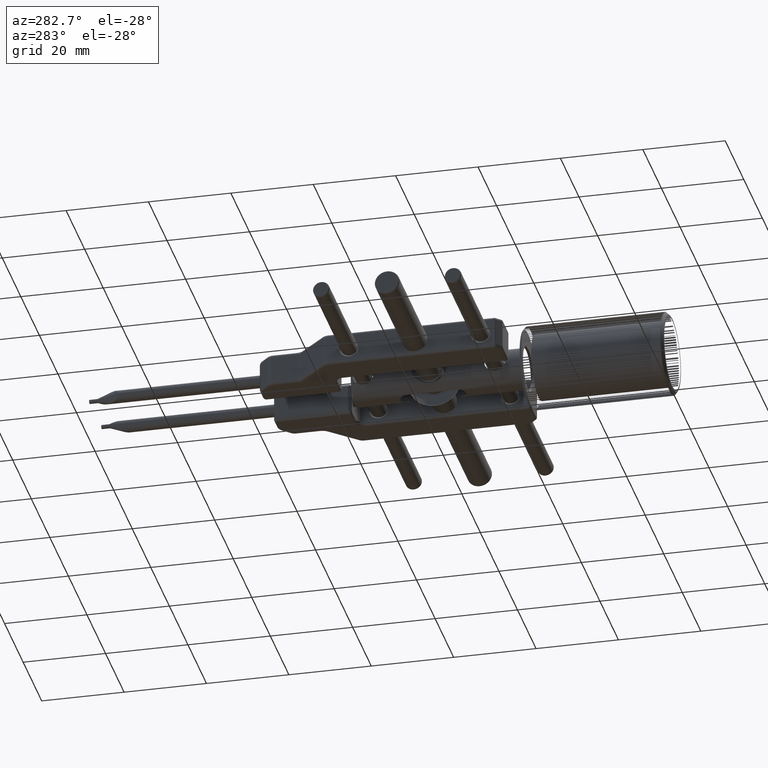
[diagram: clean part render]
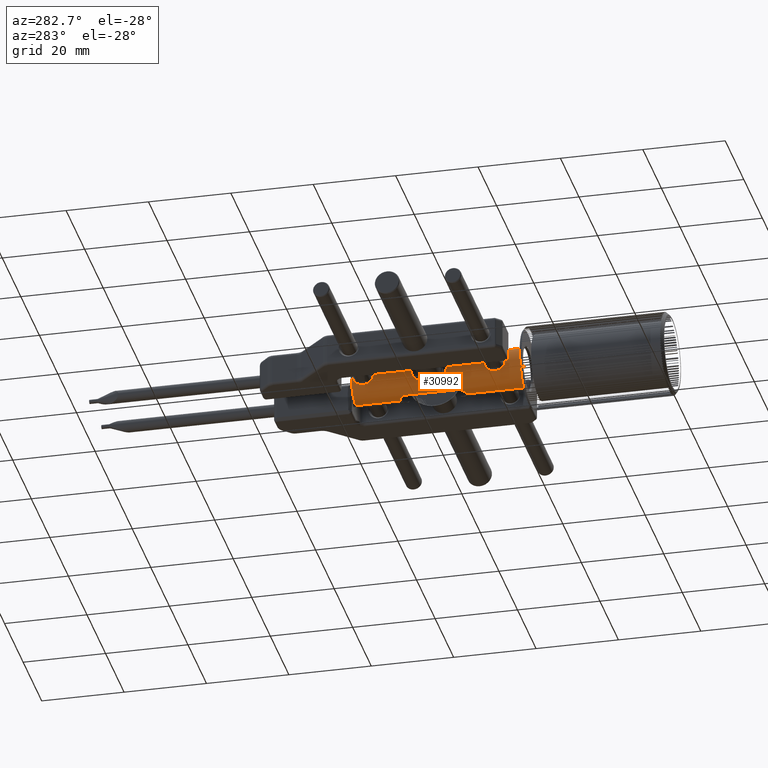
[diagram: same view with one face highlighted and labeled with its STEP entity id]
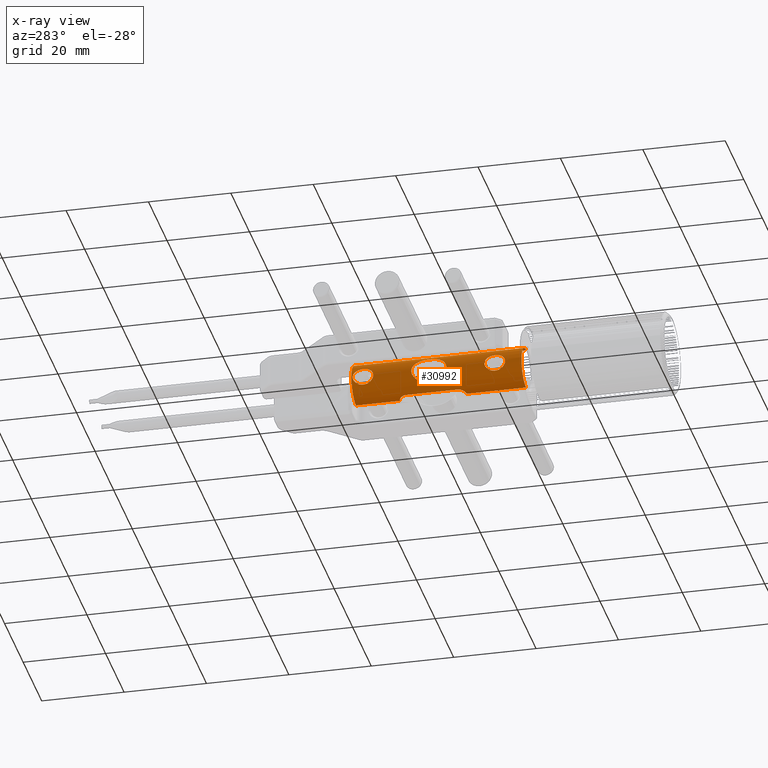
[diagram: x-ray of the same camera — body ghosted, the highlighted face saturated]
A machine part, auxiliary view. The second image highlights one B-rep face of the part: STEP entity #30992.
The next image is the same camera in x-ray: the body ghosted, the highlighted face saturated — about 0% of this face is hidden behind the body in this view.
In plain terms, the highlighted cylindrical surface (edge-blend (fillet) strip) has radius 5 mm, axis along (-0, 1, -0).
Its self-contained STEP definition (entity closure, byte-faithful):
#15 = CARTESIAN_POINT ( 'NONE',  ( 19.99999999999999645, -34.50000000000000711, -0.2999140032563584746 ) ) ;
#18 = CARTESIAN_POINT ( 'NONE',  ( 20.45665283619407404, -24.16835215239452594, -2.089154429699983773 ) ) ;
#39 = CARTESIAN_POINT ( 'NONE',  ( 20.00669171081387887, -7.480655479626978632, -0.2960163650369317390 ) ) ;
#76 = CARTESIAN_POINT ( 'NONE',  ( 23.11224500434408213, -44.00000000000001421, -4.629943960392628455 ) ) ;
#101 = CARTESIAN_POINT ( 'NONE',  ( 20.39904262038426808, -24.31647923895431518, 1.957479872175702962 ) ) ;
#109 = EDGE_LOOP ( 'NONE', ( #15869, #6287 ) ) ;
#134 = CARTESIAN_POINT ( 'NONE',  ( 24.50625021467720899, -29.05256573259817543, -4.981098555345285561 ) ) ;
#138 = CARTESIAN_POINT ( 'NONE',  ( 20.20687152731778014, -38.80179171199565502, 1.426740367924009822 ) ) ;
#238 = CARTESIAN_POINT ( 'NONE',  ( 24.99999999999999289, -35.20000000000000284, 4.999999999999996447 ) ) ;
#309 = CARTESIAN_POINT ( 'NONE',  ( 20.44286721934921758, -5.149471235189816198, 2.057313986359127878 ) ) ;
#331 = CARTESIAN_POINT ( 'NONE',  ( 20.00454236299416877, -16.75981851664606026, 0.2456527682153577807 ) ) ;
#364 = CARTESIAN_POINT ( 'NONE',  ( 20.02689195699815272, -39.42232349323862906, 0.5877842479438136758 ) ) ;
#516 = CARTESIAN_POINT ( 'NONE',  ( 19.99999999999999289, -7.500000000000007105, -6.146941655954615716E-15 ) ) ;
#548 = CARTESIAN_POINT ( 'NONE',  ( 20.14573621731877751, -17.07440836720072141, 1.200616975941756426 ) ) ;
#750 = CARTESIAN_POINT ( 'NONE',  ( 20.36507307678931511, -6.030021484894629857, 1.876147251006983652 ) ) ;
#771 = CARTESIAN_POINT ( 'NONE',  ( 20.20061671323987795, -24.79889878450510565, 1.402179484897787320 ) ) ;
#897 = CARTESIAN_POINT ( 'NONE',  ( 23.11224500434407858, -27.25000000000001066, -4.629943960392627567 ) ) ;
#971 = CARTESIAN_POINT ( 'NONE',  ( 19.99999999999998934, -7.500000000000007105, 0.2992925205360466023 ) ) ;
#992 = CARTESIAN_POINT ( 'NONE',  ( 20.13910898025508089, -24.94080661742637162, 1.176545796726934823 ) ) ;
#1073 = CARTESIAN_POINT ( 'NONE',  ( 20.27202725101447811, -35.47702677935685500, -1.626866207090957639 ) ) ;
#1134 = EDGE_CURVE ( 'NONE', #41681, #26835, #20713, .T. ) ;
#1252 = CARTESIAN_POINT ( 'NONE',  ( 23.58942159157867025, -36.24283060222756347, 4.797048654011990543 ) ) ;
#1444 = CARTESIAN_POINT ( 'NONE',  ( 23.89944412064445700, -6.266244572312738903, 4.877411364227955737 ) ) ;
#1519 = CARTESIAN_POINT ( 'NONE',  ( 20.10438617938984862, -34.83029733832424313, -1.016795906031746854 ) ) ;
#1623 = CARTESIAN_POINT ( 'NONE',  ( 20.01795108407523571, -25.21087940645014669, -0.4276793978593785295 ) ) ;
#1653 = CARTESIAN_POINT ( 'NONE',  ( 20.07201420509879597, -25.09155286819541431, 0.8460285501206782355 ) ) ;
#1661 = CARTESIAN_POINT ( 'NONE',  ( 24.17966789947979933, -6.530793497397959335, 4.932979024456971118 ) ) ;
#1851 = CARTESIAN_POINT ( 'NONE',  ( 24.99999999970839326, -44.00000000000001421, -5.000000000000003553 ) ) ;
#1876 = ORIENTED_EDGE ( 'NONE', *, *, #28049, .T. ) ;
#1879 = CARTESIAN_POINT ( 'NONE',  ( 23.58962484543852156, -4.242321342825943198, 4.797108717244942255 ) ) ;
#2097 = CARTESIAN_POINT ( 'NONE',  ( 24.01394325969783239, -3.607431243563409939, 4.902536348087190632 ) ) ;
#2156 = VERTEX_POINT ( 'NONE', #9068 ) ;
#2238 = EDGE_CURVE ( 'NONE', #3961, #5961, #24727, .T. ) ;
#2240 = CARTESIAN_POINT ( 'NONE',  ( 23.75351656105019416, -13.35531002399022782, 4.842994641922151899 ) ) ;
#2279 = CARTESIAN_POINT ( 'NONE',  ( 20.23284817929989998, -38.69289821081103042, -1.508110650223396743 ) ) ;
#2283 = CARTESIAN_POINT ( 'NONE',  ( 19.99999999999999645, -25.25000000000002842, -0.1227809918430907421 ) ) ;
#2317 = CARTESIAN_POINT ( 'NONE',  ( 24.31780741237113119, -3.384610488830886332, 4.953297516374313147 ) ) ;
#2322 = CARTESIAN_POINT ( 'NONE',  ( 24.87444798334945162, -29.10000326416878735, 4.999999999999997335 ) ) ;
#2388 = EDGE_CURVE ( 'NONE', #26835, #2156, #15202, .T. ) ;
#2408 = CARTESIAN_POINT ( 'NONE',  ( 23.49869043514873823, -28.37849593309974594, -4.769819126405119292 ) ) ;
#2505 = CARTESIAN_POINT ( 'NONE',  ( 20.42210532841707149, -24.25805193736200494, -2.012569616462025923 ) ) ;
#2680 = CARTESIAN_POINT ( 'NONE',  ( 23.84157975758771641, -13.26881428273240715, -4.867423671774194993 ) ) ;
#2716 = CARTESIAN_POINT ( 'NONE',  ( 20.30534938861919159, -35.63527408570197252, -1.720907486605592895 ) ) ;
#2718 = CARTESIAN_POINT ( 'NONE',  ( 20.47523398298056918, -17.88158845084233661, -2.127938447558601176 ) ) ;
#2741 = CARTESIAN_POINT ( 'NONE',  ( 20.08641097410537313, -2.770855179280670821, -0.9256843538760020085 ) ) ;
#2781 = CARTESIAN_POINT ( 'NONE',  ( 24.31752791405992653, -35.38476996165530153, 4.953259064019441382 ) ) ;
#2903 = CARTESIAN_POINT ( 'NONE',  ( 23.11224500434408213, -14.75000000000001243, -4.629943960392630231 ) ) ;
#2941 = CARTESIAN_POINT ( 'NONE',  ( 20.42152521474147164, -37.60183880538926360, -2.011797953674028694 ) ) ;
#2944 = CARTESIAN_POINT ( 'NONE',  ( 20.98539324490414515, -19.66295490732460749, -2.980693237303821963 ) ) ;
#3020 = CARTESIAN_POINT ( 'NONE',  ( 20.27139902866617049, -24.63186843634150591, 1.625630158978760065 ) ) ;
#3059 = CARTESIAN_POINT ( 'NONE',  ( 20.26471236226160855, -35.44057274161949067, 1.607992980457936927 ) ) ;
#3127 = ORIENTED_EDGE ( 'NONE', *, *, #19825, .T. ) ;
#3164 = CARTESIAN_POINT ( 'NONE',  ( 20.85641154554708621, -22.92414180344733055, -2.798752834945354095 ) ) ;
#3184 = CARTESIAN_POINT ( 'NONE',  ( 20.06300162702806489, -7.305043505615611110, -0.7914233421023878501 ) ) ;
#3246 = CARTESIAN_POINT ( 'NONE',  ( 20.85684838448837297, -19.07756762564934050, 2.799398841544997296 ) ) ;
#3263 = AXIS2_PLACEMENT_3D ( 'NONE', #11058, #10616, #15062 ) ;
#3278 = CARTESIAN_POINT ( 'NONE',  ( 23.23412720753298188, -27.90675624632769569, -4.677856036940508666 ) ) ;
#3383 = CARTESIAN_POINT ( 'NONE',  ( 20.12330878032459935, -34.89415475569018099, -1.105222660023188697 ) ) ;
#3387 = CARTESIAN_POINT ( 'NONE',  ( 20.66761638934875478, -23.57568049987428793, -2.500405145005960339 ) ) ;
#3412 = CARTESIAN_POINT ( 'NONE',  ( 20.34281372936445109, -3.833302468746440983, -1.820901919977269801 ) ) ;
#3450 = CARTESIAN_POINT ( 'NONE',  ( 20.05485652382341399, -2.668856421357531428, 0.7400692307144645099 ) ) ;
#3472 = CARTESIAN_POINT ( 'NONE',  ( 20.82758541665014818, -18.96567840660346249, 2.755752789315264906 ) ) ;
#3505 = CARTESIAN_POINT ( 'NONE',  ( 24.99999999970839326, -29.09999991044666956, -5.000000000000004441 ) ) ;
#3510 = CARTESIAN_POINT ( 'NONE',  ( 20.16346593936320630, -35.03623979503747421, 1.269307899466379563 ) ) ;
#3692 = CARTESIAN_POINT ( 'NONE',  ( 19.99999999999999289, -16.74999999999757705, -2.498825289246000530E-13 ) ) ;
#3730 = CARTESIAN_POINT ( 'NONE',  ( 20.08610073766095283, -39.23016414827854703, 0.9240360281707417078 ) ) ;
#3917 = CARTESIAN_POINT ( 'NONE',  ( 20.66809252135809416, -18.42577542770125021, 2.501227935243729217 ) ) ;
#3920 = EDGE_CURVE ( 'NONE', #41053, #3961, #16240, .T. ) ;
#3955 = CARTESIAN_POINT ( 'NONE',  ( 20.07185587153415440, -34.72347838542508924, 0.8447789350197719704 ) ) ;
#3961 = VERTEX_POINT ( 'NONE', #17345 ) ;
#4119 = CARTESIAN_POINT ( 'NONE',  ( 20.40333049416571498, -5.738814563771751587, 1.968020717649480611 ) ) ;
#4431 = CARTESIAN_POINT ( 'NONE',  ( 20.08641097410360743, -34.77085517926746405, -0.9256843538665493476 ) ) ;
#4466 = B_SPLINE_CURVE_WITH_KNOTS ( 'NONE', 3,
 ( #32056, #2283, #29591, #1623, #8806, #43249, #22680, #38980, #35626, #15296, #29808, #30025, #13025, #37373, #40308, #20179, #23097, #36719, #9678, #43462, #5870, #40093, #33803, #2505, #18, #27082, #6303, #43690, #26645, #3387, #23313, #33150, #3164, #13466, #6090, #19960, #33581, #36937, #22885, #10125, #43909, #9463, #2944, #19747, #6527, #30460, #33370, #16373, #16593, #16816, #6753, #2718, #9244, #30243, #13244, #26864, #40531, #9898, #23524, #37154, #44127, #16159, #20396, #17035, #12810, #40749, #23748, #13690, #34027, #26429, #30684, #39874, #36504, #19534 ),
 .UNSPECIFIED., .F., .F.,
 ( 4, 2, 1, 2, 2, 2, 1, 1, 2, 2, 2, 1, 2, 2, 2, 2, 2, 2, 2, 2, 2, 2, 2, 2, 2, 2, 2, 2, 1, 2, 2, 2, 1, 1, 2, 2, 2, 1, 2, 2, 4 ),
 ( 0.000000000000000000, 0.03124999999999541339, 0.04687499999999313050, 0.05468749999999206191, 0.06249999999999099332, 0.09374999999998731570, 0.1093749999999854700, 0.1171874999999844430, 0.1210937499999840128, 0.1249999999999835965, 0.1562499999999824030, 0.1718749999999814870, 0.1796874999999807654, 0.1874999999999800160, 0.2187499999999794331, 0.2343749999999795997, 0.2499999999999797384, 0.3124999999999790168, 0.3437499999999790168, 0.3749999999999790168, 0.4999999999999801270, 0.5624999999999802380, 0.5937499999999806821, 0.6249999999999811262, 0.6874999999999811262, 0.7187499999999816813, 0.7499999999999821254, 0.7812499999999826805, 0.7968749999999833467, 0.8046874999999836797, 0.8124999999999841238, 0.8437499999999859002, 0.8593749999999863443, 0.8671874999999864553, 0.8710937499999865663, 0.8749999999999867883, 0.9062499999999901190, 0.9218749999999918954, 0.9296874999999927836, 0.9374999999999936717, 1.000000000000000000 ),
 .UNSPECIFIED. ) ;
#4614 = CARTESIAN_POINT ( 'NONE',  ( 19.99999999999999289, -39.50000000000000711, -4.370584816554365251E-15 ) ) ;
#4723 = CARTESIAN_POINT ( 'NONE',  ( 23.30546848875848553, -13.92571640062799432, 4.704374344401301755 ) ) ;
#4838 = CARTESIAN_POINT ( 'NONE',  ( 23.49155202821535937, -36.56050834472544864, 4.767067186705651771 ) ) ;
#5018 = CARTESIAN_POINT ( 'NONE',  ( 20.01833426633428914, -25.21043189264267426, 0.4923697749723639494 ) ) ;
#5055 = CARTESIAN_POINT ( 'NONE',  ( 23.84698170853747001, -35.79813620283749742, 4.865273348792769958 ) ) ;
#5201 = DIRECTION ( 'NONE',  ( -5.758371849552927784E-18, 1.000000000000000000, -5.551115123125782702E-17 ) ) ;
#5225 = LINE ( 'NONE', #1851, #43518 ) ;
#5274 = DIRECTION ( 'NONE',  ( 0.000000000000000000, 0.000000000000000000, 1.000000000000000000 ) ) ;
#5281 = CARTESIAN_POINT ( 'NONE',  ( 23.63320618133239748, -36.14193946989964701, 4.809860739169461219 ) ) ;
#5395 = CARTESIAN_POINT ( 'NONE',  ( 23.17584214208607207, -14.26910732866694786, 4.655408593785253402 ) ) ;
#5478 = CARTESIAN_POINT ( 'NONE',  ( 23.58728172656613609, -5.751584721988212578, 4.796413140335730851 ) ) ;
#5612 = CARTESIAN_POINT ( 'NONE',  ( 23.84809567274355757, -13.27901123212002865, 4.866607151185821323 ) ) ;
#5696 = CARTESIAN_POINT ( 'NONE',  ( 23.51773238680050682, -4.454863171650027986, 4.775384052045618333 ) ) ;
#5779 = CARTESIAN_POINT ( 'NONE',  ( 23.36301242836013614, -28.17982118386970569, -4.724973714046525330 ) ) ;
#5870 = CARTESIAN_POINT ( 'NONE',  ( 20.35319855090696350, -24.43195378267405360, -1.846018702322961946 ) ) ;
#5961 = VERTEX_POINT ( 'NONE', #20104 ) ;
#6087 = CARTESIAN_POINT ( 'NONE',  ( 20.05479440145454362, -39.33133996299767432, -0.7396524902628908160 ) ) ;
#6090 = CARTESIAN_POINT ( 'NONE',  ( 20.93669166416911764, -22.58169795259473744, -2.913962779857757202 ) ) ;
#6112 = CARTESIAN_POINT ( 'NONE',  ( 20.20734142512999654, -3.200044520144353033, -1.428314204832039636 ) ) ;
#6287 = ORIENTED_EDGE ( 'NONE', *, *, #28360, .T. ) ;
#6301 = CARTESIAN_POINT ( 'NONE',  ( 20.19933099295604961, -38.82795524425032596, -1.397954529743057117 ) ) ;
#6303 = CARTESIAN_POINT ( 'NONE',  ( 20.52688228369380496, -23.97869564418661881, -2.234444781509028033 ) ) ;
#6322 = CARTESIAN_POINT ( 'NONE',  ( 20.36459673115452418, -6.032869043773035678, -1.874960566676146634 ) ) ;
#6345 = DIRECTION ( 'NONE',  ( 5.758371849552927784E-18, -1.000000000000000000, 5.551115123125782702E-17 ) ) ;
#6474 = CARTESIAN_POINT ( 'NONE',  ( 23.11224500434408213, -14.75000000000001243, -4.629943960392630231 ) ) ;
#6527 = CARTESIAN_POINT ( 'NONE',  ( 20.85903226075611627, -19.07816896634852810, -2.804512301672154706 ) ) ;
#6549 = CARTESIAN_POINT ( 'NONE',  ( 20.07177473805543144, -7.276783750058771538, -0.8443054144735853139 ) ) ;
#6608 = CARTESIAN_POINT ( 'NONE',  ( 20.61663224653537796, -23.72347065336041538, 2.405719675600592300 ) ) ;
#6649 = CARTESIAN_POINT ( 'NONE',  ( 20.27157177960521395, -38.52505285927107082, 1.625542387085657792 ) ) ;
#6753 = CARTESIAN_POINT ( 'NONE',  ( 20.52765525975248906, -18.02264357807768036, -2.237107665238342147 ) ) ;
#6773 = CARTESIAN_POINT ( 'NONE',  ( 20.07809476454899666, -2.743708675388877083, -0.8804270800005801201 ) ) ;
#6839 = CARTESIAN_POINT ( 'NONE',  ( 21.10937284176264939, -21.24741964047290566, 3.140544589557606514 ) ) ;
#6855 = CIRCLE ( 'NONE', #3263, 5.000000000000000000 ) ;
#6876 = CARTESIAN_POINT ( 'NONE',  ( 20.29183418605059686, -38.43114474467814290, 1.683704433358163222 ) ) ;
#7037 = CARTESIAN_POINT ( 'NONE',  ( 20.26471236226525008, -3.440572741643377785, 1.607992980469312494 ) ) ;
#7061 = CARTESIAN_POINT ( 'NONE',  ( 20.73425961358650227, -23.36034089414178538, 2.609153325953261326 ) ) ;
#7097 = CARTESIAN_POINT ( 'NONE',  ( 20.09485151850438100, -39.20145581500339915, 0.9701620538778630287 ) ) ;
#7279 = CARTESIAN_POINT ( 'NONE',  ( 20.50966436730461595, -17.97421644252498751, 2.199665540361875671 ) ) ;
#7317 = CARTESIAN_POINT ( 'NONE',  ( 20.44286721934895468, -37.14947123517013239, 2.057313986358543900 ) ) ;
#7477 = CARTESIAN_POINT ( 'NONE',  ( 20.09663942812723292, -2.803813748894402380, 0.9866301745211701890 ) ) ;
#7494 = CARTESIAN_POINT ( 'NONE',  ( 20.73542805568406422, -18.63652512157490193, 2.612717684027708653 ) ) ;
#7825 = ORIENTED_EDGE ( 'NONE', *, *, #2388, .T. ) ;
#8147 = CARTESIAN_POINT ( 'NONE',  ( 20.13620607355242242, -7.061287541783015875, 1.160478124020406510 ) ) ;
#8204 = CARTESIAN_POINT ( 'NONE',  ( 23.79508109218010148, -38.13697647249455969, 4.853149967963403810 ) ) ;
#8398 = CARTESIAN_POINT ( 'NONE',  ( 24.46692605276365384, -6.689821456409911882, 4.971568694608047956 ) ) ;
#8427 = CARTESIAN_POINT ( 'NONE',  ( 23.63166080584526796, -37.85479811268643147, 4.809420823465296202 ) ) ;
#8537 = CARTESIAN_POINT ( 'NONE',  ( 23.11232023327259455, -14.62699246405007258, 4.629974633287764263 ) ) ;
#8595 = CARTESIAN_POINT ( 'NONE',  ( 20.10404266632902548, -7.170855622233069049, 1.015140509613541742 ) ) ;
#8631 = CARTESIAN_POINT ( 'NONE',  ( 23.11224500434408924, -27.25000000000000711, 4.629943960392623126 ) ) ;
#8676 = VERTEX_POINT ( 'NONE', #38952 ) ;
#8806 = CARTESIAN_POINT ( 'NONE',  ( 20.02632378841693139, -25.19254162822361209, -0.5186648287911334032 ) ) ;
#8842 = CARTESIAN_POINT ( 'NONE',  ( 23.88030876246096668, -6.243425189278166698, 4.873048102198598741 ) ) ;
#8982 = CARTESIAN_POINT ( 'NONE',  ( 23.39660374890512173, -13.77104502379165929, -4.736073291460155765 ) ) ;
#9062 = CARTESIAN_POINT ( 'NONE',  ( 23.45623439410946887, -4.776251676712141681, 4.755747435624490649 ) ) ;
#9068 = CARTESIAN_POINT ( 'NONE',  ( 24.99999999999999289, -2.200000000000035261, -5.000000000000006217 ) ) ;
#9240 = CARTESIAN_POINT ( 'NONE',  ( 20.36539477653943564, -35.97209773707569269, -1.876938059110730306 ) ) ;
#9244 = CARTESIAN_POINT ( 'NONE',  ( 20.44920795151969983, -17.81275215027098824, -2.072044704389089276 ) ) ;
#9370 = B_SPLINE_CURVE_WITH_KNOTS ( 'NONE', 3,
 ( #12004, #28317, #28094, #24963, #32342, #14687, #24749, #18280, #14909, #42652, #11135, #11350, #38603, #38830, #25406, #8204, #25629, #8427, #35477, #35918, #15133, #21845, #21624, #4838, #18500, #1252, #5281, #18941, #32120, #28770, #42434, #35688, #5055, #40370, #32775, #9526, #22513, #20025, #2781, #26278, #19382, #15790, #39936 ),
 .UNSPECIFIED., .F., .F.,
 ( 4, 2, 1, 2, 2, 2, 1, 2, 2, 2, 2, 2, 2, 2, 2, 2, 2, 2, 2, 1, 2, 2, 4 ),
 ( 0.000000000000000000, 0.06249999999998986921, 0.09374999999998480382, 0.1093749999999831940, 0.1249999999999815981, 0.1874999999999771017, 0.2187499999999768518, 0.2343749999999760747, 0.2499999999999752975, 0.3124999999999761857, 0.3749999999999771294, 0.4999999999999789058, 0.5624999999999797939, 0.6249999999999805711, 0.6874999999999814593, 0.7187499999999814593, 0.7343749999999814593, 0.7499999999999814593, 0.8124999999999866773, 0.8437499999999880096, 0.8593749999999886757, 0.8749999999999893419, 1.000000000000000000 ),
 .UNSPECIFIED. ) ;
#9421 = CARTESIAN_POINT ( 'NONE',  ( 24.38825042220776851, -12.99558699266188100, -4.963795817638846586 ) ) ;
#9461 = CARTESIAN_POINT ( 'NONE',  ( 20.17754634258552571, -38.91177122713537528, -1.321642860902916716 ) ) ;
#9463 = CARTESIAN_POINT ( 'NONE',  ( 21.00691309401327445, -19.78467324163423058, -3.009348155079413001 ) ) ;
#9487 = CARTESIAN_POINT ( 'NONE',  ( 20.06863969630846256, -7.286908017765900247, -0.8258264928708529684 ) ) ;
#9526 = CARTESIAN_POINT ( 'NONE',  ( 24.13852159202592418, -35.50361447415484406, 4.925408490969072517 ) ) ;
#9675 = CARTESIAN_POINT ( 'NONE',  ( 20.22146136660767723, -38.73971934241396298, -1.471640459164158088 ) ) ;
#9678 = CARTESIAN_POINT ( 'NONE',  ( 20.30232350538235053, -24.55722448474765329, -1.712943778284959029 ) ) ;
#9699 = CARTESIAN_POINT ( 'NONE',  ( 20.02700361648102501, -2.577986776124442603, -0.5889587411900853997 ) ) ;
#9761 = VECTOR ( 'NONE', #41959, 1000.000000000000000 ) ;
#9895 = CARTESIAN_POINT ( 'NONE',  ( 20.06300162702953926, -39.30504350561560045, -0.7914233421115541844 ) ) ;
#9898 = CARTESIAN_POINT ( 'NONE',  ( 20.31966663789225436, -17.48466388533542215, -1.761770215263217754 ) ) ;
#9916 = CARTESIAN_POINT ( 'NONE',  ( 20.22146136660746407, -6.739719342419144610, -1.471640459163457981 ) ) ;
#9977 = CARTESIAN_POINT ( 'NONE',  ( 20.03729821266721345, -16.83161641963808819, 0.6103408026073409154 ) ) ;
#9998 = EDGE_CURVE ( 'NONE', #43132, #43112, #36267, .T. ) ;
#10018 = CARTESIAN_POINT ( 'NONE',  ( 20.19949120817126698, -35.17266644918031915, 1.398504625884616770 ) ) ;
#10123 = CARTESIAN_POINT ( 'NONE',  ( 20.09517877577119549, -34.79963013201530231, -0.9718154845920399243 ) ) ;
#10125 = CARTESIAN_POINT ( 'NONE',  ( 21.05924088895855562, -20.14720523910553851, -3.077470638012986370 ) ) ;
#10145 = CARTESIAN_POINT ( 'NONE',  ( 20.02568687608623677, -7.422621918507898542, -0.5112702661659842551 ) ) ;
#10209 = CARTESIAN_POINT ( 'NONE',  ( 20.07040736243498813, -16.90479462218868534, 0.8439130594479539171 ) ) ;
#10247 = CARTESIAN_POINT ( 'NONE',  ( 20.34198570868165490, -35.82853702413006403, 1.818785537050638945 ) ) ;
#10249 = CARTESIAN_POINT ( 'NONE',  ( 24.99999999999999289, -6.800000000000756550, 4.999999999999994671 ) ) ;
#10375 = CARTESIAN_POINT ( 'NONE',  ( 20.25131971996409419, -3.385212455666689380, -1.565411332113548992 ) ) ;
#10416 = CARTESIAN_POINT ( 'NONE',  ( 20.23302062444900784, -3.307818371838348703, 1.508655646148131080 ) ) ;
#10437 = CARTESIAN_POINT ( 'NONE',  ( 20.21101178882878813, -24.77464156954875207, 1.437271487273549919 ) ) ;
#10473 = CARTESIAN_POINT ( 'NONE',  ( 20.05485652382489548, -34.66885642135751056, 0.7400692307242253687 ) ) ;
#10616 = DIRECTION ( 'NONE',  ( -5.758371849552927784E-18, 1.000000000000000000, -5.551115123125782702E-17 ) ) ;
#10634 = CARTESIAN_POINT ( 'NONE',  ( 20.16346593936459186, -3.036239795030533983, 1.269307899471622481 ) ) ;
#10655 = CARTESIAN_POINT ( 'NONE',  ( 20.63352881281657147, -23.67349341567300769, 2.436211139684669735 ) ) ;
#10690 = CARTESIAN_POINT ( 'NONE',  ( 20.12222050129744844, -34.88869871492497055, 1.104574223593545623 ) ) ;
#10879 = CARTESIAN_POINT ( 'NONE',  ( 20.37108302302539897, -17.61278373862645097, 1.890416652931952823 ) ) ;
#11048 = ORIENTED_EDGE ( 'NONE', *, *, #20133, .T. ) ;
#11058 = CARTESIAN_POINT ( 'NONE',  ( 24.99999999999999289, -43.50000000000001421, -3.230055112268819149E-15 ) ) ;
#11078 = CARTESIAN_POINT ( 'NONE',  ( 20.29183418604936051, -6.431144744658844559, 1.683704433354720198 ) ) ;
#11125 = CARTESIAN_POINT ( 'NONE',  ( 24.99999999999999289, -2.200000000000035261, 4.999999999999993783 ) ) ;
#11135 = CARTESIAN_POINT ( 'NONE',  ( 24.05415359153606758, -38.42600286243945362, 4.909906367057646825 ) ) ;
#11316 = CARTESIAN_POINT ( 'NONE',  ( 19.99999999999999289, -25.25000000000002487, 0.2470044082236999561 ) ) ;
#11350 = CARTESIAN_POINT ( 'NONE',  ( 23.99372231544473166, -38.36997405978773656, 4.897971281225685480 ) ) ;
#11461 = EDGE_CURVE ( 'NONE', #13932, #33722, #40705, .T. ) ;
#11547 = CARTESIAN_POINT ( 'NONE',  ( 20.08664803452808911, -25.05898795150852720, 0.9298276321646977705 ) ) ;
#11766 = CARTESIAN_POINT ( 'NONE',  ( 24.26931885217542373, -6.590777641444298673, 4.947263318291810208 ) ) ;
#12004 = CARTESIAN_POINT ( 'NONE',  ( 24.99999999999999289, -38.80000000000001847, 4.999999999999996447 ) ) ;
#12196 = CARTESIAN_POINT ( 'NONE',  ( 24.13887427825821064, -3.503342685952892666, 4.925470041144044409 ) ) ;
#12241 = B_SPLINE_CURVE_WITH_KNOTS ( 'NONE', 3,
 ( #20967, #23644, #30585, #40645, #26985, #10473, #23429, #34373, #3955, #40866, #10690, #3510, #24311, #10018, #30360, #13370, #43811, #37048, #3059, #37489, #10247, #20525, #37945, #37268, #7317, #23872, #34146, #34597, #20296, #16718, #33922, #6876, #6649, #16939, #30807, #20746, #138, #13810, #27430, #24094, #37717, #7097, #3730, #17386, #31024, #364, #14028, #4614 ),
 .UNSPECIFIED., .F., .F.,
 ( 4, 2, 1, 1, 2, 2, 2, 2, 1, 2, 2, 2, 2, 2, 2, 2, 2, 2, 2, 2, 2, 2, 1, 2, 2, 4 ),
 ( 0.000000000000000000, 0.06249999999999369948, 0.09374999999999099332, 0.1093749999999895500, 0.1171874999999893696, 0.1249999999999891753, 0.1874999999999867606, 0.2187499999999844291, 0.2343749999999844291, 0.2421874999999855393, 0.2499999999999866773, 0.3124999999999908407, 0.3749999999999950595, 0.5000000000000034417, 0.5625000000000062172, 0.6250000000000089928, 0.6875000000000117684, 0.7187500000000117684, 0.7343750000000118794, 0.7500000000000118794, 0.8125000000000103251, 0.8437500000000097700, 0.8593750000000087708, 0.8671875000000074385, 0.8750000000000059952, 1.000000000000000000 ),
 .UNSPECIFIED. ) ;
#12554 = CARTESIAN_POINT ( 'NONE',  ( 24.75086581813959086, -12.91188353919008769, -4.995268483016046090 ) ) ;
#12638 = CARTESIAN_POINT ( 'NONE',  ( 23.28223773499564686, -28.01972441585404994, 4.695739473090602800 ) ) ;
#12709 = CARTESIAN_POINT ( 'NONE',  ( 23.75354764731036639, -28.64471691420443733, -4.843002725904316463 ) ) ;
#12810 = CARTESIAN_POINT ( 'NONE',  ( 20.16629294597995425, -17.12126942270343122, -1.283448617448876394 ) ) ;
#13016 = ORIENTED_EDGE ( 'NONE', *, *, #1134, .T. ) ;
#13023 = CARTESIAN_POINT ( 'NONE',  ( 20.26452729277998088, -38.56024772149032742, -1.607447664512978935 ) ) ;
#13025 = CARTESIAN_POINT ( 'NONE',  ( 20.16982414174402294, -24.87025104326062674, -1.292565862706166246 ) ) ;
#13047 = CARTESIAN_POINT ( 'NONE',  ( 20.29185439608780683, -6.435544700992981149, -1.684768874247466686 ) ) ;
#13071 = VERTEX_POINT ( 'NONE', #897 ) ;
#13146 = CARTESIAN_POINT ( 'NONE',  ( 23.16070847108900566, -27.67204938844019324, -4.649427535057435890 ) ) ;
#13152 = CARTESIAN_POINT ( 'NONE',  ( 24.99999999999999289, -44.00000000000001421, 4.999999999999996447 ) ) ;
#13242 = CARTESIAN_POINT ( 'NONE',  ( 20.43788743408583386, -36.70287029320866168, -2.046393315044416017 ) ) ;
#13244 = CARTESIAN_POINT ( 'NONE',  ( 20.40660003260580879, -17.70281689461667085, -1.975127776988341077 ) ) ;
#13269 = CARTESIAN_POINT ( 'NONE',  ( 20.16332280538847499, -6.964280991779340901, -1.268762055466400751 ) ) ;
#13331 = CARTESIAN_POINT ( 'NONE',  ( 20.02642673658392525, -16.80768378530741813, 0.5196751855184983393 ) ) ;
#13370 = CARTESIAN_POINT ( 'NONE',  ( 20.22163022295499601, -35.26096553657074395, 1.472188635691196845 ) ) ;
#13416 = CARTESIAN_POINT ( 'NONE',  ( 19.99999999999999289, -16.74999999999757705, -2.498825289246000530E-13 ) ) ;
#13466 = CARTESIAN_POINT ( 'NONE',  ( 20.91136857509762237, -22.69609257550575521, -2.878443291484297006 ) ) ;
#13488 = CARTESIAN_POINT ( 'NONE',  ( 20.26517690406263483, -3.446139657014229751, -1.606837667871125364 ) ) ;
#13545 = CARTESIAN_POINT ( 'NONE',  ( 20.04951796443838319, -16.85857909417704192, 0.7025273425973107555 ) ) ;
#13689 = CARTESIAN_POINT ( 'NONE',  ( 20.17790691515230250, -35.08798924631480531, -1.326732338915269649 ) ) ;
#13690 = CARTESIAN_POINT ( 'NONE',  ( 20.08662281254280657, -16.94095592931805072, -0.9296892703154233661 ) ) ;
#13727 = DIRECTION ( 'NONE',  ( 0.000000000000000000, 8.673617379884035472E-17, 1.000000000000000000 ) ) ;
#13743 = DIRECTION ( 'NONE',  ( 5.758371849552927784E-18, -1.000000000000000000, 5.551115123125782702E-17 ) ) ;
#13769 = CARTESIAN_POINT ( 'NONE',  ( 20.31991073759915167, -24.51473939738045260, 1.762420703317492121 ) ) ;
#13810 = CARTESIAN_POINT ( 'NONE',  ( 20.17746204969681756, -38.91366197770388879, 1.325115488928707119 ) ) ;
#13904 = CARTESIAN_POINT ( 'NONE',  ( 19.99999999999999289, -34.50000000000000000, -4.648140572710655175E-15 ) ) ;
#13932 = VERTEX_POINT ( 'NONE', #516 ) ;
#13964 = LINE ( 'NONE', #76, #37222 ) ;
#13969 = CARTESIAN_POINT ( 'NONE',  ( 20.43780423522077072, -5.299033190292826490, 2.046209250808134872 ) ) ;
#13992 = CARTESIAN_POINT ( 'NONE',  ( 20.91177585730921962, -19.30568897848043974, 2.879021108342265212 ) ) ;
#14028 = CARTESIAN_POINT ( 'NONE',  ( 19.99999999999999645, -39.50000000000000711, 0.2992925205360564833 ) ) ;
#14208 = CARTESIAN_POINT ( 'NONE',  ( 20.56336299332261319, -23.87804608996012234, 2.306913988366696255 ) ) ;
#14404 = CARTESIAN_POINT ( 'NONE',  ( 20.34244873109764740, -6.168827398423670338, 1.819973818593156434 ) ) ;
#14687 = CARTESIAN_POINT ( 'NONE',  ( 24.46678632053933100, -38.68976196244229726, 4.971553742199319892 ) ) ;
#14897 = VERTEX_POINT ( 'NONE', #15569 ) ;
#14909 = CARTESIAN_POINT ( 'NONE',  ( 24.26917455904673560, -38.59068653246345804, 4.947241629290046738 ) ) ;
#14957 = CARTESIAN_POINT ( 'NONE',  ( 20.25131971996714952, -35.38521245568017548, -1.565411332122880639 ) ) ;
#15062 = DIRECTION ( 'NONE',  ( 0.000000000000000000, 0.000000000000000000, 1.000000000000000000 ) ) ;
#15101 = CARTESIAN_POINT ( 'NONE',  ( 20.05856454160010216, -25.12140365108861673, 0.7636387045264073636 ) ) ;
#15115 = CARTESIAN_POINT ( 'NONE',  ( 23.36534633355931234, -28.17784157886180196, 4.725339871570280792 ) ) ;
#15133 = CARTESIAN_POINT ( 'NONE',  ( 23.44703610573484198, -37.22029916779968772, 4.752715348354074720 ) ) ;
#15202 = CIRCLE ( 'NONE', #30899, 5.000000000000000000 ) ;
#15296 = CARTESIAN_POINT ( 'NONE',  ( 20.09053899381213881, -25.05045297913440905, -0.9537906810542678970 ) ) ;
#15335 = CARTESIAN_POINT ( 'NONE',  ( 24.75090666153685248, -29.08812524643222375, 4.995270253872230448 ) ) ;
#15410 = B_SPLINE_CURVE_WITH_KNOTS ( 'NONE', 3,
 ( #33919, #19855, #43805, #13146, #40421, #33046, #3278, #30581, #5779, #2408, #43361, #12709, #26326, #34808, #41314, #134, #17381, #3505 ),
 .UNSPECIFIED., .F., .F.,
 ( 4, 2, 2, 2, 2, 2, 2, 2, 4 ),
 ( 0.000000000000000000, 0.1250000000000023315, 0.1875000000000021649, 0.2500000000000019984, 0.3750000000000016653, 0.5000000000000013323, 0.6250000000000009992, 0.7500000000000006661, 1.000000000000000000 ),
 .UNSPECIFIED. ) ;
#15462 = CARTESIAN_POINT ( 'NONE',  ( 23.49867127344211326, -13.62152897061003998, 4.769813045503203064 ) ) ;
#15550 = CARTESIAN_POINT ( 'NONE',  ( 23.71125380450349596, -3.998116242274650123, 4.831134009498728510 ) ) ;
#15569 = CARTESIAN_POINT ( 'NONE',  ( 24.99999999999999289, -12.90000006003879562, 4.999999999999994671 ) ) ;
#15761 = CARTESIAN_POINT ( 'NONE',  ( 24.20358381841765905, -3.454944324667394984, 4.936529529456080923 ) ) ;
#15790 = CARTESIAN_POINT ( 'NONE',  ( 24.77935734932086831, -35.20000000000000284, 4.999999999999996447 ) ) ;
#15869 = ORIENTED_EDGE ( 'NONE', *, *, #11461, .T. ) ;
#15898 = CARTESIAN_POINT ( 'NONE',  ( 24.15773137485367528, -13.08977066531874378, 4.929945823387184234 ) ) ;
#15982 = CARTESIAN_POINT ( 'NONE',  ( 24.56730721156543495, -3.253009698920031667, 4.985413392548489142 ) ) ;
#15991 = CARTESIAN_POINT ( 'NONE',  ( 24.50849069661480328, -29.04060652707091350, 4.977267423513956679 ) ) ;
#16039 = ORIENTED_EDGE ( 'NONE', *, *, #32743, .T. ) ;
#16159 = CARTESIAN_POINT ( 'NONE',  ( 20.21085355755825930, -17.22498839802851833, -1.436744106007320276 ) ) ;
#16175 = EDGE_CURVE ( 'NONE', #8676, #43132, #6855, .T. ) ;
#16182 = CARTESIAN_POINT ( 'NONE',  ( 20.21033598249810126, -6.784784418830325237, -1.435358186091531874 ) ) ;
#16240 = LINE ( 'NONE', #22962, #35590 ) ;
#16335 = CARTESIAN_POINT ( 'NONE',  ( 23.28223051219712758, -13.98029127992512421, -4.695736827240540201 ) ) ;
#16353 = CARTESIAN_POINT ( 'NONE',  ( 24.99999999999999289, -44.00000000000001421, 4.999999999999996447 ) ) ;
#16373 = CARTESIAN_POINT ( 'NONE',  ( 20.66788389370008261, -18.42903234080319308, -2.497402773885835536 ) ) ;
#16399 = CARTESIAN_POINT ( 'NONE',  ( 19.99999999999999645, -2.500000000000002665, -0.2999140033226312951 ) ) ;
#16593 = CARTESIAN_POINT ( 'NONE',  ( 20.63413736131907683, -18.32730400649942837, -2.438206065261772526 ) ) ;
#16681 = CARTESIAN_POINT ( 'NONE',  ( 20.42249692348122281, -17.74295715523498984, 2.013460681996588342 ) ) ;
#16718 = CARTESIAN_POINT ( 'NONE',  ( 20.34244873109909690, -38.16882739844473349, 1.819973818596861248 ) ) ;
#16814 = CARTESIAN_POINT ( 'NONE',  ( 20.12210102631146214, -39.11170761375512228, -1.104044997069512757 ) ) ;
#16816 = CARTESIAN_POINT ( 'NONE',  ( 20.56309247089393111, -18.12119036435813513, -2.306394800261016620 ) ) ;
#16839 = CARTESIAN_POINT ( 'NONE',  ( 20.03742336197748841, -7.386350942808479481, -0.6177066142201107501 ) ) ;
#16856 = CARTESIAN_POINT ( 'NONE',  ( 24.99999999999999289, -2.200000000000035261, -5.522665658119766852E-15 ) ) ;
#16903 = CARTESIAN_POINT ( 'NONE',  ( 20.45706302949485433, -17.83272549512728489, 2.090046415000182289 ) ) ;
#16939 = CARTESIAN_POINT ( 'NONE',  ( 20.26471511342522192, -38.55593071744538491, 1.605476786569019154 ) ) ;
#17035 = CARTESIAN_POINT ( 'NONE',  ( 20.20046566145884981, -17.20074939578348250, -1.401662254032211674 ) ) ;
#17060 = CARTESIAN_POINT ( 'NONE',  ( 20.13660002923734282, -2.940090373641336186, -1.162127716260424437 ) ) ;
#17118 = CARTESIAN_POINT ( 'NONE',  ( 20.40689435858299206, -24.29642993634598369, 1.975812032072852942 ) ) ;
#17222 = DIRECTION ( 'NONE',  ( 5.758371849552927784E-18, -1.000000000000000000, 5.551115123125782702E-17 ) ) ;
#17251 = CARTESIAN_POINT ( 'NONE',  ( 24.99999999970839326, -29.09999991044666956, -5.000000000000004441 ) ) ;
#17330 = CARTESIAN_POINT ( 'NONE',  ( 20.34198570868817768, -3.828537024165921565, 1.818785537067323155 ) ) ;
#17345 = CARTESIAN_POINT ( 'NONE',  ( 24.99999999999999289, -29.09999993996126477, 4.999999999999995559 ) ) ;
#17349 = CARTESIAN_POINT ( 'NONE',  ( 20.76639496360983372, -23.25289481776099976, 2.660788664290670624 ) ) ;
#17381 = CARTESIAN_POINT ( 'NONE',  ( 24.74904229016818391, -29.10000198487312772, -4.999999999985368149 ) ) ;
#17386 = CARTESIAN_POINT ( 'NONE',  ( 20.08037145139730839, -39.24888262391068139, 0.8930305065041881374 ) ) ;
#17575 = CARTESIAN_POINT ( 'NONE',  ( 20.12657763435876390, -17.03089605927188899, 1.119324450006787819 ) ) ;
#18280 = CARTESIAN_POINT ( 'NONE',  ( 24.38877942521594377, -38.65340258482507352, 4.962558917201229214 ) ) ;
#18445 = CARTESIAN_POINT ( 'NONE',  ( 24.99999999999999289, -43.50000000000001421, 4.999999999999996447 ) ) ;
#18500 = CARTESIAN_POINT ( 'NONE',  ( 23.51760350281664103, -36.45533618499247552, 4.775343742643163303 ) ) ;
#18552 = CARTESIAN_POINT ( 'NONE',  ( 20.24473264248752358, -35.35693364402055039, -1.545327138105088816 ) ) ;
#18614 = CARTESIAN_POINT ( 'NONE',  ( 23.57772543210046479, -13.52748315300308590, 4.794314666223838728 ) ) ;
#18647 = ORIENTED_EDGE ( 'NONE', *, *, #30476, .T. ) ;
#18696 = CARTESIAN_POINT ( 'NONE',  ( 23.73920060627339979, -3.951690843030752021, 4.838526816334998593 ) ) ;
#18834 = CARTESIAN_POINT ( 'NONE',  ( 23.36299971490381466, -13.82020072918590259, 4.724969259247670195 ) ) ;
#18888 = CARTESIAN_POINT ( 'NONE',  ( 20.20687152732561387, -6.801791711981254984, 1.426740367948556631 ) ) ;
#18917 = CARTESIAN_POINT ( 'NONE',  ( 23.44734347252875395, -4.885962865589016602, 4.752815767854751350 ) ) ;
#18941 = CARTESIAN_POINT ( 'NONE',  ( 23.71094734871704190, -35.99864525998960119, 4.831052129759966007 ) ) ;
#19126 = CARTESIAN_POINT ( 'NONE',  ( 19.99999999999999289, -7.500000000000007105, -6.146941655954615716E-15 ) ) ;
#19136 = CARTESIAN_POINT ( 'NONE',  ( 23.93664306172083656, -3.686546062023102976, 4.886168791820757917 ) ) ;
#19144 = CARTESIAN_POINT ( 'NONE',  ( 23.39661740644791266, -28.22897701440824036, 4.736077928847405083 ) ) ;
#19159 = CYLINDRICAL_SURFACE ( 'NONE', #40782, 5.000000000000000000 ) ;
#19315 = CARTESIAN_POINT ( 'NONE',  ( 20.16332280538907185, -38.96428099176249304, -1.268762055468681593 ) ) ;
#19356 = CARTESIAN_POINT ( 'NONE',  ( 23.79967193594499619, -3.861859570625922000, 4.853811298346402126 ) ) ;
#19363 = CARTESIAN_POINT ( 'NONE',  ( 24.04335398293239479, -28.86345780871736011, 4.913131342226424891 ) ) ;
#19382 = CARTESIAN_POINT ( 'NONE',  ( 24.56712347906155713, -35.25305466471456128, 4.985400531065142360 ) ) ;
#19428 = CARTESIAN_POINT ( 'NONE',  ( 23.11224500434408924, -44.00000000000001421, 4.629943960392624014 ) ) ;
#19476 = CARTESIAN_POINT ( 'NONE',  ( 25.00000000029160319, -12.90000008955335176, -5.000000000000005329 ) ) ;
#19494 = CARTESIAN_POINT ( 'NONE',  ( 24.50842823587422714, -12.95941110614396052, -4.977261522031867003 ) ) ;
#19534 = CARTESIAN_POINT ( 'NONE',  ( 19.99999999999999289, -16.74999999999757705, -2.498825289246000530E-13 ) ) ;
#19551 = EDGE_CURVE ( 'NONE', #20874, #23657, #12241, .T. ) ;
#19560 = CARTESIAN_POINT ( 'NONE',  ( 20.26452729277403719, -6.560247721506446972, -1.607447664494390693 ) ) ;
#19693 = B_SPLINE_CURVE_WITH_KNOTS ( 'NONE', 3,
 ( #27147, #27374, #31187, #24472, #40810, #3450, #27815, #23815, #38109, #7477, #37433, #10634, #41036, #21128, #31403, #34757, #20465, #10416, #7037, #34313, #17330, #38328, #30967, #28038, #309, #13969, #27598, #4119, #750, #14404, #41706, #11078, #24692, #33866, #32061, #42151, #18888, #22012, #8147, #42806, #8595, #29149, #28482, #34974, #35195, #25570, #971, #22236 ),
 .UNSPECIFIED., .F., .F.,
 ( 4, 2, 1, 1, 2, 2, 2, 2, 1, 2, 2, 2, 2, 2, 2, 2, 2, 2, 2, 2, 2, 2, 1, 2, 2, 4 ),
 ( 0.000000000000000000, 0.06250000000000106859, 0.09375000000000169309, 0.1093750000000018596, 0.1171875000000019013, 0.1250000000000019429, 0.1875000000000020817, 0.2187500000000023315, 0.2343750000000025535, 0.2421875000000025535, 0.2500000000000025535, 0.3125000000000024980, 0.3750000000000024425, 0.5000000000000018874, 0.5625000000000015543, 0.6250000000000009992, 0.6875000000000005551, 0.7187500000000003331, 0.7343750000000003331, 0.7500000000000003331, 0.8124999999999997780, 0.8437499999999995559, 0.8593749999999993339, 0.8671874999999993339, 0.8749999999999992228, 1.000000000000000000 ),
 .UNSPECIFIED. ) ;
#19696 = EDGE_CURVE ( 'NONE', #33515, #27566, #26614, .T. ) ;
#19747 = CARTESIAN_POINT ( 'NONE',  ( 20.91464127987913102, -19.30686616882564977, -2.883789593540462270 ) ) ;
#19769 = CARTESIAN_POINT ( 'NONE',  ( 20.09517877577426503, -2.799630132037289165, -0.9718154846077220466 ) ) ;
#19825 = EDGE_CURVE ( 'NONE', #2156, #33515, #20580, .T. ) ;
#19855 = CARTESIAN_POINT ( 'NONE',  ( 23.11231968058215003, -27.37300952365205831, -4.629974407940737890 ) ) ;
#19958 = CARTESIAN_POINT ( 'NONE',  ( 20.36459673115450286, -38.03286904381342737, -1.874960566676083573 ) ) ;
#19960 = CARTESIAN_POINT ( 'NONE',  ( 21.05652653099232907, -21.98081594004420225, -3.078226182413702716 ) ) ;
#19984 = CARTESIAN_POINT ( 'NONE',  ( 20.12210102631095410, -7.111707613771971026, -1.104044997067216372 ) ) ;
#20025 = CARTESIAN_POINT ( 'NONE',  ( 24.27136814538534182, -35.41220044499505804, 4.946679605939620750 ) ) ;
#20057 = VECTOR ( 'NONE', #5201, 1000.000000000000000 ) ;
#20104 = CARTESIAN_POINT ( 'NONE',  ( 23.11224500434408924, -27.25000000000000711, 4.629943960392623126 ) ) ;
#20133 = EDGE_CURVE ( 'NONE', #14897, #22824, #42935, .T. ) ;
#20179 = CARTESIAN_POINT ( 'NONE',  ( 20.19219126372446738, -24.81849133864372803, -1.373001844208146416 ) ) ;
#20202 = CARTESIAN_POINT ( 'NONE',  ( 20.42152521474142546, -5.601838805470074512, -2.011797953673920780 ) ) ;
#20263 = CARTESIAN_POINT ( 'NONE',  ( 20.47552101651566048, -24.11764748434401184, 2.128548341637645613 ) ) ;
#20296 = CARTESIAN_POINT ( 'NONE',  ( 20.36507307679034540, -38.03002148490867285, 1.876147251009436578 ) ) ;
#20396 = CARTESIAN_POINT ( 'NONE',  ( 20.20370665326279180, -17.20830235330268110, -1.412702164415282402 ) ) ;
#20465 = CARTESIAN_POINT ( 'NONE',  ( 20.22907129351802880, -3.291451358984839537, 1.496127127921139888 ) ) ;
#20486 = CARTESIAN_POINT ( 'NONE',  ( 20.68448748628542333, -23.51826799426198278, 2.525352901007285045 ) ) ;
#20525 = CARTESIAN_POINT ( 'NONE',  ( 20.36477914319588578, -35.96831475996643235, 1.875410194542738385 ) ) ;
#20580 = LINE ( 'NONE', #24147, #33210 ) ;
#20614 = ORIENTED_EDGE ( 'NONE', *, *, #30628, .T. ) ;
#20708 = CARTESIAN_POINT ( 'NONE',  ( 20.56279134024026689, -18.12140608788873664, 2.304930558325232859 ) ) ;
#20713 = LINE ( 'NONE', #41734, #9761 ) ;
#20746 = CARTESIAN_POINT ( 'NONE',  ( 20.24424678516038512, -38.64513735114232418, 1.543831483391725934 ) ) ;
#20874 = VERTEX_POINT ( 'NONE', #27891 ) ;
#20876 = ORIENTED_EDGE ( 'NONE', *, *, #3920, .T. ) ;
#20927 = CARTESIAN_POINT ( 'NONE',  ( 20.22406833082981592, -17.25562767795070229, 1.483450152459125038 ) ) ;
#20967 = CARTESIAN_POINT ( 'NONE',  ( 19.99999999999999289, -34.50000000000000000, -4.648140572710655175E-15 ) ) ;
#21128 = CARTESIAN_POINT ( 'NONE',  ( 20.19949120817229016, -3.172666449175693515, 1.398504625888086217 ) ) ;
#21139 = EDGE_CURVE ( 'NONE', #34841, #30008, #24333, .T. ) ;
#21453 = CARTESIAN_POINT ( 'NONE',  ( 20.02700361646958882, -34.57798677612446880, -0.5889587411248091708 ) ) ;
#21624 = CARTESIAN_POINT ( 'NONE',  ( 23.45618429158717433, -36.77671754016485295, 4.755731058901956132 ) ) ;
#21734 = CARTESIAN_POINT ( 'NONE',  ( 23.21224831009377709, -14.15246406269798207, 4.669510141429841887 ) ) ;
#21845 = CARTESIAN_POINT ( 'NONE',  ( 23.44731902355200504, -36.88641688599255986, 4.752807780167360718 ) ) ;
#21897 = CARTESIAN_POINT ( 'NONE',  ( 20.20734142512364429, -35.20004452011563956, -1.428314204812152655 ) ) ;
#22012 = CARTESIAN_POINT ( 'NONE',  ( 20.17746204970706358, -6.913661977682287407, 1.325115488965996180 ) ) ;
#22039 = CARTESIAN_POINT ( 'NONE',  ( 24.99999999999999289, -6.800000000000756550, 4.999999999999994671 ) ) ;
#22114 = CARTESIAN_POINT ( 'NONE',  ( 24.99999999999999289, -3.199999999999993960, 4.999999999999994671 ) ) ;
#22236 = CARTESIAN_POINT ( 'NONE',  ( 19.99999999999999289, -7.500000000000007105, -6.146941655954615716E-15 ) ) ;
#22266 = CARTESIAN_POINT ( 'NONE',  ( 23.79509674253786855, -6.137005470108781502, 4.853154491706079376 ) ) ;
#22286 = DIRECTION ( 'NONE',  ( -5.758371849552927784E-18, 1.000000000000000000, -5.551115123125782702E-17 ) ) ;
#22294 = ORIENTED_EDGE ( 'NONE', *, *, #19696, .T. ) ;
#22489 = CARTESIAN_POINT ( 'NONE',  ( 23.84740430796752264, -3.797592643496916498, 4.865373470837567993 ) ) ;
#22505 = FACE_BOUND ( 'NONE', #34268, .T. ) ;
#22513 = CARTESIAN_POINT ( 'NONE',  ( 24.20325488421277171, -35.45517068583278331, 4.936476758235375684 ) ) ;
#22563 = DIRECTION ( 'NONE',  ( -5.758371849552927784E-18, 1.000000000000000000, -5.551115123125782702E-17 ) ) ;
#22635 = CARTESIAN_POINT ( 'NONE',  ( 23.30783467425982280, -13.92753756494884598, -4.705051107892858298 ) ) ;
#22674 = CARTESIAN_POINT ( 'NONE',  ( 20.00669171081566233, -39.48065547962698218, -0.2960163650671009949 ) ) ;
#22680 = CARTESIAN_POINT ( 'NONE',  ( 20.04491495792182931, -25.15158725685108010, -0.6693680558845825912 ) ) ;
#22824 = VERTEX_POINT ( 'NONE', #10249 ) ;
#22882 = CARTESIAN_POINT ( 'NONE',  ( 20.06863969630926903, -39.28690801776588870, -0.8258264928756632317 ) ) ;
#22885 = CARTESIAN_POINT ( 'NONE',  ( 21.09672567240141206, -20.51147371544722731, -3.125072978325833972 ) ) ;
#22924 = CARTESIAN_POINT ( 'NONE',  ( 23.93674165017689504, -6.308507300723107392, 4.885677695163230361 ) ) ;
#22962 = CARTESIAN_POINT ( 'NONE',  ( 24.99999999999999289, -44.00000000000001421, 4.999999999999996447 ) ) ;
#23094 = CARTESIAN_POINT ( 'NONE',  ( 20.29185439609766917, -38.43554470096880493, -1.684768874275016426 ) ) ;
#23097 = CARTESIAN_POINT ( 'NONE',  ( 20.22362037715281957, -24.74542500297862802, -1.482014798188765026 ) ) ;
#23124 = CARTESIAN_POINT ( 'NONE',  ( 20.41811101137383488, -4.407523177573211548, -2.001721748854361049 ) ) ;
#23181 = DIRECTION ( 'NONE',  ( -5.758371849552927784E-18, 1.000000000000000000, -5.551115123125782702E-17 ) ) ;
#23274 = CARTESIAN_POINT ( 'NONE',  ( 23.36533428832994375, -13.82217934456323860, -4.725335694806394038 ) ) ;
#23313 = CARTESIAN_POINT ( 'NONE',  ( 20.73495508921881481, -23.36502273187820222, -2.611948141375417975 ) ) ;
#23337 = CARTESIAN_POINT ( 'NONE',  ( 19.99999999999999289, -2.500000000000002220, -6.424497412110905640E-15 ) ) ;
#23429 = CARTESIAN_POINT ( 'NONE',  ( 20.06307263496949034, -34.69518349780574340, 0.7918663706065995900 ) ) ;
#23522 = CARTESIAN_POINT ( 'NONE',  ( 20.41811101137379225, -36.40752317762156309, -2.001721748854300209 ) ) ;
#23524 = CARTESIAN_POINT ( 'NONE',  ( 20.27119246717535361, -17.36763678812945599, -1.625028610659729145 ) ) ;
#23610 = CARTESIAN_POINT ( 'NONE',  ( 20.09082421878177627, -16.95018463986297874, 0.9552613581431641521 ) ) ;
#23644 = CARTESIAN_POINT ( 'NONE',  ( 19.99999999999999289, -34.50000000000000000, 0.1494214582991923446 ) ) ;
#23657 = VERTEX_POINT ( 'NONE', #33929 ) ;
#23746 = CARTESIAN_POINT ( 'NONE',  ( 20.08067019067080849, -34.75209237822690511, -0.8946747260586189743 ) ) ;
#23748 = CARTESIAN_POINT ( 'NONE',  ( 20.10324014396059411, -16.97821002982486149, -1.012357698886702018 ) ) ;
#23750 = ORIENTED_EDGE ( 'NONE', *, *, #34559, .T. ) ;
#23776 = CARTESIAN_POINT ( 'NONE',  ( 20.17754634258495727, -6.911771227150818930, -1.321642860900829497 ) ) ;
#23815 = CARTESIAN_POINT ( 'NONE',  ( 20.06871678017540717, -2.713340102252788100, 0.8262868523467503667 ) ) ;
#23836 = CARTESIAN_POINT ( 'NONE',  ( 20.38047764029223430, -17.63644542833566931, 1.913239546947214320 ) ) ;
#23872 = CARTESIAN_POINT ( 'NONE',  ( 20.43780423522037637, -37.29903319026328745, 2.046209250807254243 ) ) ;
#24055 = CARTESIAN_POINT ( 'NONE',  ( 21.00627303646653843, -22.21913995469895653, 3.008499956089775385 ) ) ;
#24094 = CARTESIAN_POINT ( 'NONE',  ( 20.12293400174266012, -39.10713275742791240, 1.103567450671424366 ) ) ;
#24147 = CARTESIAN_POINT ( 'NONE',  ( 24.99999999999999289, -44.00000000000001421, -5.000000000000003553 ) ) ;
#24275 = CARTESIAN_POINT ( 'NONE',  ( 20.93706870125512154, -19.42005389915453506, 2.914488147217597636 ) ) ;
#24311 = CARTESIAN_POINT ( 'NONE',  ( 20.17769679527507520, -35.08878909358725906, 1.322191815842937768 ) ) ;
#24333 = B_SPLINE_CURVE_WITH_KNOTS ( 'NONE', 3,
 ( #3692, #34114, #331, #41512, #13331, #9977, #44204, #13545, #10209, #23610, #17575, #548, #30326, #27169, #24489, #30772, #20927, #26949, #34334, #38126, #34562, #10879, #23836, #16681, #16903, #7279, #40607, #20708, #37685, #3917, #7494, #3472, #3246, #13992, #24275, #30550, #37454, #6839, #27618, #31207, #40832, #24055, #33887, #37238, #30988, #17349, #7061, #20486, #41284, #10655, #6608, #14208, #33664, #20263, #37908, #43990, #17118, #101, #27837, #13769, #3020, #27398, #41060, #10437, #28060, #771, #31644, #992, #32309, #11547, #1653, #25594, #15101, #5018, #11316, #39234 ),
 .UNSPECIFIED., .F., .F.,
 ( 4, 2, 1, 2, 2, 2, 1, 1, 2, 2, 2, 1, 2, 2, 2, 2, 2, 2, 2, 2, 2, 2, 2, 2, 2, 2, 2, 2, 2, 1, 2, 2, 2, 1, 1, 2, 2, 2, 1, 2, 2, 4 ),
 ( 0.000000000000000000, 0.03124999999999990286, 0.04687499999999985428, 0.05468749999999983347, 0.06249999999999980571, 0.09374999999999993061, 0.1093750000000000000, 0.1171875000000002776, 0.1210937500000003053, 0.1250000000000003331, 0.1562499999999989175, 0.1718749999999980294, 0.1796874999999975853, 0.1874999999999971412, 0.2187499999999954481, 0.2343749999999950040, 0.2499999999999945599, 0.3124999999999931721, 0.3437499999999925615, 0.3749999999999919509, 0.4999999999999902300, 0.5624999999999888978, 0.5937499999999882316, 0.6249999999999876765, 0.6874999999999871214, 0.7187499999999864553, 0.7343749999999864553, 0.7499999999999865663, 0.7812499999999863443, 0.7968749999999863443, 0.8046874999999866773, 0.8124999999999871214, 0.8437499999999896749, 0.8593749999999912292, 0.8671874999999921174, 0.8710937499999926725, 0.8749999999999932276, 0.9062499999999950040, 0.9218749999999958922, 0.9296874999999964473, 0.9374999999999970024, 1.000000000000000000 ),
 .UNSPECIFIED. ) ;
#24472 = CARTESIAN_POINT ( 'NONE',  ( 20.02571668966393759, -2.577468178974066770, 0.5115659369910104948 ) ) ;
#24489 = CARTESIAN_POINT ( 'NONE',  ( 20.18858450527181247, -17.17313870147372512, 1.360319622900424852 ) ) ;
#24692 = CARTESIAN_POINT ( 'NONE',  ( 20.27157177960433643, -6.525052859257025162, 1.625542387083136697 ) ) ;
#24727 = B_SPLINE_CURVE_WITH_KNOTS ( 'NONE', 3,
 ( #43289, #2322, #15335, #15991, #29626, #19363, #25607, #39465, #32972, #19144, #15115, #32543, #12638, #26258, #32757, #8631 ),
 .UNSPECIFIED., .F., .F.,
 ( 4, 2, 2, 2, 2, 2, 2, 4 ),
 ( 0.000000000000000000, 0.1250000000000001388, 0.2500000000000002776, 0.4999999999999992228, 0.6249999999999985567, 0.6874999999999997780, 0.7500000000000009992, 1.000000000000000000 ),
 .UNSPECIFIED. ) ;
#24749 = CARTESIAN_POINT ( 'NONE',  ( 24.41559441894714055, -38.66655395453538802, 4.965796366784919869 ) ) ;
#24963 = CARTESIAN_POINT ( 'NONE',  ( 24.62260814060169167, -38.74695312478427667, 4.986019655568548536 ) ) ;
#25406 = CARTESIAN_POINT ( 'NONE',  ( 23.88023899898062297, -38.24334041576966570, 4.873032032238131528 ) ) ;
#25415 = ORIENTED_EDGE ( 'NONE', *, *, #19551, .T. ) ;
#25570 = CARTESIAN_POINT ( 'NONE',  ( 20.02689195699815272, -7.422323493238642378, 0.5877842479437991319 ) ) ;
#25594 = CARTESIAN_POINT ( 'NONE',  ( 20.06271191040633184, -25.11221221860097685, 0.7899333027058935697 ) ) ;
#25600 = CARTESIAN_POINT ( 'NONE',  ( 23.73520093099649841, -6.046483110455858956, 4.837681970254947394 ) ) ;
#25607 = CARTESIAN_POINT ( 'NONE',  ( 23.84161695574375983, -28.73121473204258436, 4.867432883183487213 ) ) ;
#25629 = CARTESIAN_POINT ( 'NONE',  ( 23.73521893981107311, -38.04650433868490467, 4.837686397156081064 ) ) ;
#25738 = CARTESIAN_POINT ( 'NONE',  ( 23.12440241230004645, -14.50610635142712290, 4.634955506748956289 ) ) ;
#25818 = CARTESIAN_POINT ( 'NONE',  ( 23.99380912528471299, -6.370060794880575195, 4.897989231170363666 ) ) ;
#25914 = CARTESIAN_POINT ( 'NONE',  ( 19.99999999999999289, -25.25000000000002487, -5.161618721599788497E-15 ) ) ;
#25961 = CARTESIAN_POINT ( 'NONE',  ( 23.57602065076099862, -13.52927652472487807, -4.793821072754540502 ) ) ;
#26036 = CARTESIAN_POINT ( 'NONE',  ( 24.54414874931948987, -6.722129450395191164, 4.979650802402998622 ) ) ;
#26177 = CARTESIAN_POINT ( 'NONE',  ( 23.49810117547160004, -13.62227642974063535, -4.769630904096183066 ) ) ;
#26216 = CARTESIAN_POINT ( 'NONE',  ( 20.44261737684490754, -37.30638220001169714, -2.056760522019929205 ) ) ;
#26253 = CARTESIAN_POINT ( 'NONE',  ( 23.63344912692870636, -4.141418474783605141, 4.809930249793246126 ) ) ;
#26258 = CARTESIAN_POINT ( 'NONE',  ( 23.16034823028546441, -27.73352914642081046, 4.650430489493650121 ) ) ;
#26278 = CARTESIAN_POINT ( 'NONE',  ( 24.33952519340540377, -35.37242766032229468, 4.956250905498289505 ) ) ;
#26326 = CARTESIAN_POINT ( 'NONE',  ( 23.84813115667433081, -28.72101572610556630, -4.866615641629278066 ) ) ;
#26426 = CARTESIAN_POINT ( 'NONE',  ( 20.02568687608932052, -39.42262191850790032, -0.5112702661960386585 ) ) ;
#26429 = CARTESIAN_POINT ( 'NONE',  ( 20.06270878230635191, -16.88778087246085136, -0.7899128844177332187 ) ) ;
#26452 = CARTESIAN_POINT ( 'NONE',  ( 20.29226899336084955, -3.570958711190274748, -1.684917995875400809 ) ) ;
#26614 = B_SPLINE_CURVE_WITH_KNOTS ( 'NONE', 3,
 ( #43206, #40050, #12554, #19494, #9421, #33760, #2680, #25961, #26177, #8982, #23274, #22635, #16335, #36897, #33544, #2903 ),
 .UNSPECIFIED., .F., .F.,
 ( 4, 2, 2, 2, 2, 2, 2, 4 ),
 ( 0.000000000000000000, 0.1250000000000013878, 0.2500000000000027756, 0.5000000000000029976, 0.6250000000000031086, 0.6875000000000022204, 0.7500000000000012212, 1.000000000000000000 ),
 .UNSPECIFIED. ) ;
#26643 = CARTESIAN_POINT ( 'NONE',  ( 20.34179586247232407, -38.17255571100842104, -1.818300140348364291 ) ) ;
#26645 = CARTESIAN_POINT ( 'NONE',  ( 20.58055011286467817, -23.82813304740347959, -2.338762717237013788 ) ) ;
#26670 = CARTESIAN_POINT ( 'NONE',  ( 20.43788743408586583, -4.702870293160305692, -2.046393315044481298 ) ) ;
#26768 = DIRECTION ( 'NONE',  ( -5.758371849552927784E-18, 1.000000000000000000, -5.551115123125782702E-17 ) ) ;
#26835 = VERTEX_POINT ( 'NONE', #11125 ) ;
#26864 = CARTESIAN_POINT ( 'NONE',  ( 20.39874101848305088, -17.68275230294570477, -1.956770725198966776 ) ) ;
#26888 = CARTESIAN_POINT ( 'NONE',  ( 20.40355666130177426, -4.263240966132433307, -1.968545323126976943 ) ) ;
#26949 = CARTESIAN_POINT ( 'NONE',  ( 20.25436328978900846, -17.32703090291025561, 1.577426528710350384 ) ) ;
#26985 = CARTESIAN_POINT ( 'NONE',  ( 20.03746641902466052, -34.61378138786815839, 0.6180599935409007983 ) ) ;
#27082 = CARTESIAN_POINT ( 'NONE',  ( 20.50922995085311484, -24.02696451609467587, -2.198778475923601317 ) ) ;
#27104 = CARTESIAN_POINT ( 'NONE',  ( 20.30534938860838423, -3.635274085658904752, -1.720907486576091161 ) ) ;
#27147 = CARTESIAN_POINT ( 'NONE',  ( 19.99999999999999289, -2.500000000000002220, -6.424497412110905640E-15 ) ) ;
#27169 = CARTESIAN_POINT ( 'NONE',  ( 20.18118573273429206, -17.15600410031047218, 1.333873156246444092 ) ) ;
#27374 = CARTESIAN_POINT ( 'NONE',  ( 19.99999999999999645, -2.500000000000003109, 0.1494214582862898044 ) ) ;
#27398 = CARTESIAN_POINT ( 'NONE',  ( 20.24787689509147981, -24.68801510582368408, 1.556152775509529684 ) ) ;
#27430 = CARTESIAN_POINT ( 'NONE',  ( 20.13620607354343761, -39.06128754180461016, 1.160478123982798593 ) ) ;
#27566 = VERTEX_POINT ( 'NONE', #6474 ) ;
#27598 = CARTESIAN_POINT ( 'NONE',  ( 20.41793430654597685, -5.594481961535509917, 2.001318684051591301 ) ) ;
#27618 = CARTESIAN_POINT ( 'NONE',  ( 21.09650172619513242, -21.49183770166523644, 3.124796135449934731 ) ) ;
#27815 = CARTESIAN_POINT ( 'NONE',  ( 20.06307263496855242, -2.695183497805742512, 0.7918663706007282865 ) ) ;
#27837 = CARTESIAN_POINT ( 'NONE',  ( 20.35420715910710499, -24.43020577141083649, 1.850726620472114003 ) ) ;
#27891 = CARTESIAN_POINT ( 'NONE',  ( 19.99999999999999289, -34.50000000000000000, -4.648140572710655175E-15 ) ) ;
#28038 = CARTESIAN_POINT ( 'NONE',  ( 20.44269730157818898, -4.695272661435775596, 2.056937575805447338 ) ) ;
#28049 = EDGE_CURVE ( 'NONE', #13071, #39634, #15410, .T. ) ;
#28060 = CARTESIAN_POINT ( 'NONE',  ( 20.20385904713815606, -24.79134225104418476, 1.413219507064614966 ) ) ;
#28094 = CARTESIAN_POINT ( 'NONE',  ( 24.78148816897354223, -38.78673828119607947, 4.996350574642015374 ) ) ;
#28317 = CARTESIAN_POINT ( 'NONE',  ( 24.88970374095253746, -38.80000000000001137, 4.999999999999997335 ) ) ;
#28360 = EDGE_CURVE ( 'NONE', #33722, #13932, #19693, .T. ) ;
#28482 = CARTESIAN_POINT ( 'NONE',  ( 20.08610073766313775, -7.230164148271904345, 0.9240360281824039346 ) ) ;
#28592 = B_SPLINE_CURVE_WITH_KNOTS ( 'NONE', 3,
 ( #36715, #43687, #22674, #26426, #43246, #6087, #9895, #22882, #33579, #40091, #16814, #19315, #9461, #6301, #32932, #9675, #36932, #2279, #13023, #23094, #26643, #19958, #2941, #26216, #37152, #13242, #23522, #39870, #9240, #33368, #2716, #30458, #1073, #42033, #14957, #18552, #21897, #13689, #35301, #3383, #1519, #10123, #4431, #23746, #40972, #21453, #15, #13904 ),
 .UNSPECIFIED., .F., .F.,
 ( 4, 2, 1, 1, 2, 2, 2, 2, 1, 2, 2, 2, 2, 2, 2, 2, 2, 2, 2, 2, 2, 2, 1, 2, 2, 4 ),
 ( 0.000000000000000000, 0.06249999999999054923, 0.09374999999998581690, 0.1093749999999835409, 0.1171874999999817923, 0.1249999999999800437, 0.1874999999999597544, 0.2187499999999495959, 0.2343749999999454325, 0.2421874999999445721, 0.2499999999999436839, 0.3124999999999480971, 0.3749999999999524269, 0.4999999999999586997, 0.5624999999999632516, 0.6249999999999678035, 0.6874999999999723554, 0.7187499999999745759, 0.7343749999999767963, 0.7499999999999789058, 0.8124999999999856781, 0.8437499999999891198, 0.8593749999999910072, 0.8671874999999918954, 0.8749999999999927836, 1.000000000000000000 ),
 .UNSPECIFIED. ) ;
#28741 = CARTESIAN_POINT ( 'NONE',  ( 24.33979166717217524, -3.372281521490115175, 4.956286360220824250 ) ) ;
#28770 = CARTESIAN_POINT ( 'NONE',  ( 23.78381057852211455, -35.88459507745242405, 4.849857952227778490 ) ) ;
#28834 = ORIENTED_EDGE ( 'NONE', *, *, #38189, .T. ) ;
#28987 = CARTESIAN_POINT ( 'NONE',  ( 24.99999999999999289, -44.00000000000001421, -3.202299536653190235E-15 ) ) ;
#29101 = CARTESIAN_POINT ( 'NONE',  ( 24.74900099636245443, -12.90000661762291401, 4.999999999999995559 ) ) ;
#29148 = DIRECTION ( 'NONE',  ( 5.758371849552927784E-18, -1.000000000000000000, 5.551115123125782702E-17 ) ) ;
#29149 = CARTESIAN_POINT ( 'NONE',  ( 20.09485151850816109, -7.201455814992374194, 0.9701620538972179908 ) ) ;
#29184 = CARTESIAN_POINT ( 'NONE',  ( 23.78417262273372401, -3.884065761553546547, 4.849948763089499515 ) ) ;
#29402 = CARTESIAN_POINT ( 'NONE',  ( 24.27166811567954596, -3.412014839661540844, 4.946723731786314637 ) ) ;
#29544 = CARTESIAN_POINT ( 'NONE',  ( 24.50619134106932151, -12.94745008864091673, 4.981092454684991289 ) ) ;
#29591 = CARTESIAN_POINT ( 'NONE',  ( 20.00452449864114257, -25.24021985161255088, -0.2451709350748891569 ) ) ;
#29620 = CARTESIAN_POINT ( 'NONE',  ( 24.77945476705786376, -3.199999999999993960, 4.999999999999993783 ) ) ;
#29626 = CARTESIAN_POINT ( 'NONE',  ( 24.38832120775621348, -29.00443676845737428, 4.963804675055605742 ) ) ;
#29808 = CARTESIAN_POINT ( 'NONE',  ( 20.12623214136811001, -24.96988663852262746, -1.117818352328782350 ) ) ;
#29829 = CARTESIAN_POINT ( 'NONE',  ( 20.05479440145222014, -7.331339962997689419, -0.7396524902476507846 ) ) ;
#30008 = VERTEX_POINT ( 'NONE', #25914 ) ;
#30025 = CARTESIAN_POINT ( 'NONE',  ( 20.14536028509463961, -24.92644889980840972, -1.199094863874574424 ) ) ;
#30239 = ORIENTED_EDGE ( 'NONE', *, *, #35427, .T. ) ;
#30243 = CARTESIAN_POINT ( 'NONE',  ( 20.42358139907697989, -17.74645274426913133, -2.014161310574137165 ) ) ;
#30264 = CARTESIAN_POINT ( 'NONE',  ( 20.23284817930062829, -6.692898210809033799, -1.508110650225712668 ) ) ;
#30326 = CARTESIAN_POINT ( 'NONE',  ( 20.17023586775677657, -17.13069677334364016, 1.294103707250532587 ) ) ;
#30360 = CARTESIAN_POINT ( 'NONE',  ( 20.21050077593140415, -35.21586847891897065, 1.435907971714614373 ) ) ;
#30458 = CARTESIAN_POINT ( 'NONE',  ( 20.29226899337052714, -35.57095871122976405, -1.684917995902537990 ) ) ;
#30460 = CARTESIAN_POINT ( 'NONE',  ( 20.76671500752014055, -18.74816609741615991, -2.661301174118985813 ) ) ;
#30476 = EDGE_CURVE ( 'NONE', #23657, #20874, #28592, .T. ) ;
#30484 = CARTESIAN_POINT ( 'NONE',  ( 19.99999999999999645, -7.500000000000007105, -0.1493310547881215866 ) ) ;
#30550 = CARTESIAN_POINT ( 'NONE',  ( 21.05685825651478638, -20.02140792048478346, 3.078646385713409650 ) ) ;
#30581 = CARTESIAN_POINT ( 'NONE',  ( 23.30547833486905063, -28.07430343400357131, -4.704377919817418707 ) ) ;
#30585 = CARTESIAN_POINT ( 'NONE',  ( 20.00669981432561784, -34.51936704474352524, 0.2961923247717740404 ) ) ;
#30628 = EDGE_CURVE ( 'NONE', #5961, #34844, #43356, .T. ) ;
#30684 = CARTESIAN_POINT ( 'NONE',  ( 20.05856898274857514, -16.87860619034035281, -0.7636674876842834969 ) ) ;
#30708 = CARTESIAN_POINT ( 'NONE',  ( 20.19933099295560552, -6.827955244261560530, -1.397954529741540775 ) ) ;
#30766 = VECTOR ( 'NONE', #22563, 1000.000000000000000 ) ;
#30772 = CARTESIAN_POINT ( 'NONE',  ( 20.19263883479975874, -17.18254790234804830, 1.374567999251204986 ) ) ;
#30782 = EDGE_LOOP ( 'NONE', ( #36272, #44276 ) ) ;
#30807 = CARTESIAN_POINT ( 'NONE',  ( 20.25084653328477202, -38.61683674041414349, 1.563975709153517357 ) ) ;
#30899 = AXIS2_PLACEMENT_3D ( 'NONE', #16856, #6345, #13727 ) ;
#30967 = CARTESIAN_POINT ( 'NONE',  ( 20.42166352705968180, -4.399605902988009021, 2.012107923827817668 ) ) ;
#30988 = CARTESIAN_POINT ( 'NONE',  ( 20.85843473546987070, -22.92407255971664526, 2.803617099445085525 ) ) ;
#30992 = ADVANCED_FACE ( 'NONE', ( #43085, #39042, #22505, #35913 ), #19159, .T. ) ;
#31024 = CARTESIAN_POINT ( 'NONE',  ( 20.07779677682674802, -39.25726091637074688, 0.8787589881162104488 ) ) ;
#31187 = CARTESIAN_POINT ( 'NONE',  ( 20.00669981432447031, -2.519367044743517692, 0.2961923247524493319 ) ) ;
#31207 = CARTESIAN_POINT ( 'NONE',  ( 21.05881553799092032, -21.85636411208551522, 3.076926624384850761 ) ) ;
#31403 = CARTESIAN_POINT ( 'NONE',  ( 20.21050077593222127, -3.215868478915414386, 1.435907971717259368 ) ) ;
#31644 = CARTESIAN_POINT ( 'NONE',  ( 20.16640410910101266, -24.87847603556763332, 1.283874679990572698 ) ) ;
#32056 = CARTESIAN_POINT ( 'NONE',  ( 19.99999999999999289, -25.25000000000002487, -5.161618721599788497E-15 ) ) ;
#32061 = CARTESIAN_POINT ( 'NONE',  ( 20.25084653328438122, -6.616836740407572748, 1.563975709152323867 ) ) ;
#32120 = CARTESIAN_POINT ( 'NONE',  ( 23.73887231897763073, -35.95222093811655384, 4.838441116203245684 ) ) ;
#32236 = CARTESIAN_POINT ( 'NONE',  ( 23.11224500434408213, -14.75000000000001243, 4.629943960392618685 ) ) ;
#32309 = CARTESIAN_POINT ( 'NONE',  ( 20.10328237163272647, -25.02169536158590546, 1.012564490511786763 ) ) ;
#32342 = CARTESIAN_POINT ( 'NONE',  ( 24.54402771868220157, -38.72208740202687238, 4.979639955822314334 ) ) ;
#32457 = CARTESIAN_POINT ( 'NONE',  ( 24.05081946184915509, -13.14598919365207763, 4.910173627186797063 ) ) ;
#32537 = CARTESIAN_POINT ( 'NONE',  ( 23.63159411707405155, -5.854665222515183842, 4.809402132267123875 ) ) ;
#32543 = CARTESIAN_POINT ( 'NONE',  ( 23.30784378061611761, -28.07248085785215963, 4.705054392911974581 ) ) ;
#32743 = EDGE_CURVE ( 'NONE', #34844, #14897, #41173, .T. ) ;
#32750 = CARTESIAN_POINT ( 'NONE',  ( 23.83169345583574028, -3.818118194566879620, 4.861618187412107162 ) ) ;
#32757 = CARTESIAN_POINT ( 'NONE',  ( 23.11239135786172838, -27.49603402576500955, 4.630003632731297891 ) ) ;
#32775 = CARTESIAN_POINT ( 'NONE',  ( 24.01354993587526820, -35.60780011411137735, 4.902457717538361237 ) ) ;
#32932 = CARTESIAN_POINT ( 'NONE',  ( 20.21033598249845298, -38.78478441882170813, -1.435358186092682953 ) ) ;
#32967 = CARTESIAN_POINT ( 'NONE',  ( 24.41574637242711887, -6.666625973548679696, 4.965814214919527458 ) ) ;
#32972 = CARTESIAN_POINT ( 'NONE',  ( 23.49812011018352820, -28.37774854617246589, 4.769636920589487517 ) ) ;
#33046 = CARTESIAN_POINT ( 'NONE',  ( 23.21225283051094124, -27.84754948305490529, -4.669511876799137262 ) ) ;
#33150 = CARTESIAN_POINT ( 'NONE',  ( 20.82713707758252752, -23.03599248492493601, -2.755074468461297776 ) ) ;
#33170 = CARTESIAN_POINT ( 'NONE',  ( 20.10438617939408346, -2.830297338352954384, -1.016795906052195608 ) ) ;
#33210 = VECTOR ( 'NONE', #17222, 1000.000000000000000 ) ;
#33368 = CARTESIAN_POINT ( 'NONE',  ( 20.34281372937589438, -35.83330246878950476, -1.820901920006539498 ) ) ;
#33370 = CARTESIAN_POINT ( 'NONE',  ( 20.73447438033634072, -18.64033896356924913, -2.609509869969591112 ) ) ;
#33515 = VERTEX_POINT ( 'NONE', #19476 ) ;
#33544 = CARTESIAN_POINT ( 'NONE',  ( 23.11238945764451813, -14.50397559709091588, -4.630002857960692886 ) ) ;
#33579 = CARTESIAN_POINT ( 'NONE',  ( 20.07177473805539236, -39.27678375006016864, -0.8443054144733899147 ) ) ;
#33581 = CARTESIAN_POINT ( 'NONE',  ( 21.10927826061277557, -21.49258060069907117, -3.140427421606789782 ) ) ;
#33608 = CARTESIAN_POINT ( 'NONE',  ( 20.22889984930642271, -6.709255013482821717, -1.495580310088221676 ) ) ;
#33664 = CARTESIAN_POINT ( 'NONE',  ( 20.52793359923757777, -23.97659029770601080, 2.237662746235708155 ) ) ;
#33722 = VERTEX_POINT ( 'NONE', #37761 ) ;
#33760 = CARTESIAN_POINT ( 'NONE',  ( 24.04330086915233622, -13.13657438592115057, -4.913120457874676106 ) ) ;
#33803 = CARTESIAN_POINT ( 'NONE',  ( 20.38011154035414663, -24.36447836953080071, -1.912355321522895890 ) ) ;
#33825 = CARTESIAN_POINT ( 'NONE',  ( 20.44290604204184447, -4.852374947488385715, -2.057399988586377848 ) ) ;
#33866 = CARTESIAN_POINT ( 'NONE',  ( 20.26471511342450427, -6.555930717433554378, 1.605476786566890857 ) ) ;
#33887 = CARTESIAN_POINT ( 'NONE',  ( 20.98457512970849947, -22.34145397549878709, 2.979590558397207989 ) ) ;
#33919 = CARTESIAN_POINT ( 'NONE',  ( 23.11224500434407858, -27.25000000000001066, -4.629943960392627567 ) ) ;
#33922 = CARTESIAN_POINT ( 'NONE',  ( 20.30493063126424147, -38.36683994818967136, 1.719766191510887943 ) ) ;
#33929 = CARTESIAN_POINT ( 'NONE',  ( 19.99999999999999289, -39.50000000000000711, -4.370584816554365251E-15 ) ) ;
#34027 = CARTESIAN_POINT ( 'NONE',  ( 20.07200269411086424, -16.90842159327521443, -0.8459606884680366257 ) ) ;
#34050 = CARTESIAN_POINT ( 'NONE',  ( 20.24473264248593551, -3.356933644013360585, -1.545327138100118569 ) ) ;
#34114 = CARTESIAN_POINT ( 'NONE',  ( 19.99999999999998579, -16.74999999999757705, 0.1230230454430228937 ) ) ;
#34146 = CARTESIAN_POINT ( 'NONE',  ( 20.41793430654558605, -37.59448196150596999, 2.001318684050712893 ) ) ;
#34227 = B_SPLINE_CURVE_WITH_KNOTS ( 'NONE', 3,
 ( #22039, #36323, #42624, #36538, #26036, #8398, #32967, #39458, #11766, #1661, #35890, #25818, #22924, #1444, #8842, #22266, #25600, #32537, #5478, #35659, #39684, #18917, #9062, #39240, #5696, #1879, #26253, #15550, #18696, #29184, #19356, #32750, #22489, #19136, #2097, #12196, #15761, #29402, #2317, #28741, #15982, #29620, #43282 ),
 .UNSPECIFIED., .F., .F.,
 ( 4, 2, 1, 2, 2, 2, 1, 2, 2, 2, 2, 2, 2, 2, 2, 2, 2, 2, 2, 1, 2, 2, 4 ),
 ( 0.000000000000000000, 0.06250000000000568989, 0.09375000000000859035, 0.1093750000000091316, 0.1250000000000096867, 0.1875000000000088263, 0.2187500000000092981, 0.2343750000000095479, 0.2500000000000097700, 0.3125000000000073830, 0.3750000000000050515, 0.5000000000000001110, 0.5624999999999973355, 0.6249999999999945599, 0.6874999999999918954, 0.7187499999999911182, 0.7343749999999913403, 0.7499999999999915623, 0.8124999999999932276, 0.8437499999999942268, 0.8593749999999946709, 0.8749999999999950040, 1.000000000000000000 ),
 .UNSPECIFIED. ) ;
#34268 = EDGE_LOOP ( 'NONE', ( #18647, #25415 ) ) ;
#34313 = CARTESIAN_POINT ( 'NONE',  ( 20.29204554979681419, -3.565367151856337458, 1.685302009350984287 ) ) ;
#34334 = CARTESIAN_POINT ( 'NONE',  ( 20.30274527237116899, -17.44380087698538873, 1.714098475427784818 ) ) ;
#34373 = CARTESIAN_POINT ( 'NONE',  ( 20.06871678017592942, -34.71334010225280764, 0.8262868523498314577 ) ) ;
#34559 = EDGE_CURVE ( 'NONE', #27566, #13071, #13964, .T. ) ;
#34562 = CARTESIAN_POINT ( 'NONE',  ( 20.35359280002427695, -17.56902784561684072, 1.847010458394843013 ) ) ;
#34597 = CARTESIAN_POINT ( 'NONE',  ( 20.40333049416470601, -37.73881456375766419, 1.968020717647048556 ) ) ;
#34757 = CARTESIAN_POINT ( 'NONE',  ( 20.22163022295549339, -3.260965536568601664, 1.472188635692783798 ) ) ;
#34808 = CARTESIAN_POINT ( 'NONE',  ( 24.05086371684576463, -28.85403625845403397, -4.910182272744599175 ) ) ;
#34841 = VERTEX_POINT ( 'NONE', #13416 ) ;
#34844 = VERTEX_POINT ( 'NONE', #37322 ) ;
#34974 = CARTESIAN_POINT ( 'NONE',  ( 20.08037145139840618, -7.248882623907202394, 0.8930305065103134599 ) ) ;
#35195 = CARTESIAN_POINT ( 'NONE',  ( 20.07779677682674802, -7.257260916370747772, 0.8787589881161863570 ) ) ;
#35301 = CARTESIAN_POINT ( 'NONE',  ( 20.13660002923004910, -34.94009037359824532, -1.162127716229964580 ) ) ;
#35427 = EDGE_CURVE ( 'NONE', #43112, #41053, #9370, .T. ) ;
#35477 = CARTESIAN_POINT ( 'NONE',  ( 23.58737488960352024, -37.75181397322003107, 4.796440621431905527 ) ) ;
#35590 = VECTOR ( 'NONE', #23181, 1000.000000000000000 ) ;
#35626 = CARTESIAN_POINT ( 'NONE',  ( 20.07016150428858481, -25.09575169045345788, -0.8424705251382389459 ) ) ;
#35659 = CARTESIAN_POINT ( 'NONE',  ( 23.48170207155557421, -5.436893300890344172, 4.764470498596711678 ) ) ;
#35688 = CARTESIAN_POINT ( 'NONE',  ( 23.83129681193491933, -35.81864473524285586, 4.861522812552718342 ) ) ;
#35808 = CARTESIAN_POINT ( 'NONE',  ( 23.23412116002171857, -14.09325959602237610, 4.677853746776380994 ) ) ;
#35890 = CARTESIAN_POINT ( 'NONE',  ( 24.05425312824933926, -6.426092493663815297, 4.909925616268836279 ) ) ;
#35913 = FACE_BOUND ( 'NONE', #30782, .T. ) ;
#35918 = CARTESIAN_POINT ( 'NONE',  ( 23.48177885299544343, -37.43721890091757132, 4.764495135748092913 ) ) ;
#36096 = VECTOR ( 'NONE', #26768, 1000.000000000000000 ) ;
#36267 = LINE ( 'NONE', #16353, #20057 ) ;
#36272 = ORIENTED_EDGE ( 'NONE', *, *, #42473, .T. ) ;
#36323 = CARTESIAN_POINT ( 'NONE',  ( 24.88973471371547674, -6.800000000000757439, 4.999999999999996447 ) ) ;
#36359 = ORIENTED_EDGE ( 'NONE', *, *, #43372, .T. ) ;
#36504 = CARTESIAN_POINT ( 'NONE',  ( 20.00000000000000711, -16.74999999999757705, -0.2470139517677334973 ) ) ;
#36538 = CARTESIAN_POINT ( 'NONE',  ( 24.62270937253208203, -6.746981753460794984, 4.986027170317643531 ) ) ;
#36715 = CARTESIAN_POINT ( 'NONE',  ( 19.99999999999999289, -39.50000000000000711, -4.370584816554365251E-15 ) ) ;
#36719 = CARTESIAN_POINT ( 'NONE',  ( 20.25392204022584863, -24.67401942819918048, -1.576105117794798893 ) ) ;
#36741 = CARTESIAN_POINT ( 'NONE',  ( 20.09653803261799609, -7.196521799243130069, -0.9861217564953170811 ) ) ;
#36897 = CARTESIAN_POINT ( 'NONE',  ( 23.16034416036055177, -14.26648564829030086, -4.650428820501749883 ) ) ;
#36932 = CARTESIAN_POINT ( 'NONE',  ( 20.22889984930653640, -38.70925501348009590, -1.495580310088595155 ) ) ;
#36937 = CARTESIAN_POINT ( 'NONE',  ( 21.10947526387069573, -20.75570854943797272, -3.140671470959054634 ) ) ;
#37048 = CARTESIAN_POINT ( 'NONE',  ( 20.23302062444946259, -35.30781837184134986, 1.508655646149554608 ) ) ;
#37152 = CARTESIAN_POINT ( 'NONE',  ( 20.44290604204182671, -36.85237494752062304, -2.057399988586333883 ) ) ;
#37154 = CARTESIAN_POINT ( 'NONE',  ( 20.24768887439483933, -17.31153907221946397, -1.555577296289420763 ) ) ;
#37222 = VECTOR ( 'NONE', #13743, 1000.000000000000000 ) ;
#37238 = CARTESIAN_POINT ( 'NONE',  ( 20.91391077142985822, -22.69621234915108587, 2.882752496268852216 ) ) ;
#37268 = CARTESIAN_POINT ( 'NONE',  ( 20.44269730157871834, -36.69527266147515121, 2.056937575806622842 ) ) ;
#37322 = CARTESIAN_POINT ( 'NONE',  ( 23.11224500434408213, -14.75000000000001243, 4.629943960392618685 ) ) ;
#37373 = CARTESIAN_POINT ( 'NONE',  ( 20.18075863263924319, -24.84498328444419357, -1.332329198255430391 ) ) ;
#37394 = CARTESIAN_POINT ( 'NONE',  ( 20.34179586246168725, -6.172555711032595482, -1.818300140321112091 ) ) ;
#37433 = CARTESIAN_POINT ( 'NONE',  ( 20.12222050129865281, -2.888698714918017441, 1.104574223598833616 ) ) ;
#37454 = CARTESIAN_POINT ( 'NONE',  ( 21.10948293674874421, -20.50996409415950339, 3.140680976190546758 ) ) ;
#37489 = CARTESIAN_POINT ( 'NONE',  ( 20.29204554979077457, -35.56536715182051012, 1.685302009334121998 ) ) ;
#37685 = CARTESIAN_POINT ( 'NONE',  ( 20.58101471471851340, -18.17319559720761291, 2.339640308399592694 ) ) ;
#37717 = CARTESIAN_POINT ( 'NONE',  ( 20.10404266632381720, -39.17085562224746553, 1.015140509588309037 ) ) ;
#37761 = CARTESIAN_POINT ( 'NONE',  ( 19.99999999999999289, -2.500000000000002220, -6.424497412110905640E-15 ) ) ;
#37908 = CARTESIAN_POINT ( 'NONE',  ( 20.44949857404841254, -24.18648629641778669, 2.072682247532394051 ) ) ;
#37945 = CARTESIAN_POINT ( 'NONE',  ( 20.42166352706016141, -36.39960590297001630, 2.012107923828961642 ) ) ;
#38109 = CARTESIAN_POINT ( 'NONE',  ( 20.07185587153407269, -2.723478385425653236, 0.8447789350193294355 ) ) ;
#38126 = CARTESIAN_POINT ( 'NONE',  ( 20.32767155736961229, -17.50460214818190963, 1.781362229723407298 ) ) ;
#38189 = EDGE_CURVE ( 'NONE', #22824, #41681, #34227, .T. ) ;
#38328 = CARTESIAN_POINT ( 'NONE',  ( 20.36477914319613092, -3.968314759957463078, 1.875410194543313480 ) ) ;
#38603 = CARTESIAN_POINT ( 'NONE',  ( 23.93666697986927261, -38.30842550576561223, 4.885661428543270013 ) ) ;
#38783 = EDGE_LOOP ( 'NONE', ( #1876, #36359, #39349, #43536, #30239, #20876, #40126, #20614, #16039, #11048, #28834, #13016, #7825, #3127, #22294, #23750 ) ) ;
#38830 = CARTESIAN_POINT ( 'NONE',  ( 23.89937741289829631, -38.26616652500186433, 4.877396295854722119 ) ) ;
#38952 = CARTESIAN_POINT ( 'NONE',  ( 24.99999999970839326, -43.50000000000001421, -5.000000000000003553 ) ) ;
#38980 = CARTESIAN_POINT ( 'NONE',  ( 20.04931930129477635, -25.14185985157457282, -0.7011256169103556868 ) ) ;
#39042 = FACE_BOUND ( 'NONE', #109, .T. ) ;
#39234 = CARTESIAN_POINT ( 'NONE',  ( 19.99999999999999289, -25.25000000000002487, -5.161618721599788497E-15 ) ) ;
#39240 = CARTESIAN_POINT ( 'NONE',  ( 23.49165720656928258, -4.560025109253641240, 4.767100579480685774 ) ) ;
#39349 = ORIENTED_EDGE ( 'NONE', *, *, #16175, .T. ) ;
#39383 = CARTESIAN_POINT ( 'NONE',  ( 24.99999999999999289, -12.90000006003879562, 4.999999999999994671 ) ) ;
#39458 = CARTESIAN_POINT ( 'NONE',  ( 24.38894810657176748, -6.653487165115023139, 4.962579713572024431 ) ) ;
#39465 = CARTESIAN_POINT ( 'NONE',  ( 23.57604369139917821, -28.47074986751511361, 4.793828007821618442 ) ) ;
#39634 = VERTEX_POINT ( 'NONE', #17251 ) ;
#39684 = CARTESIAN_POINT ( 'NONE',  ( 23.44698881154683434, -5.219890147662482605, 4.752699896943903823 ) ) ;
#39870 = CARTESIAN_POINT ( 'NONE',  ( 20.40355666129371315, -36.26324096610371583, -1.968545323107642631 ) ) ;
#39874 = CARTESIAN_POINT ( 'NONE',  ( 20.01833568526402019, -16.78957113548766245, -0.4923886425560564106 ) ) ;
#39936 = CARTESIAN_POINT ( 'NONE',  ( 24.99999999999999289, -35.20000000000000284, 4.999999999999996447 ) ) ;
#40050 = CARTESIAN_POINT ( 'NONE',  ( 24.87442438584731264, -12.90000112815220135, -5.000000000007329248 ) ) ;
#40091 = CARTESIAN_POINT ( 'NONE',  ( 20.09653803261826610, -39.19652179923190261, -0.9861217564968625116 ) ) ;
#40093 = CARTESIAN_POINT ( 'NONE',  ( 20.37069976872821897, -24.38817884421569104, -1.889478268032293906 ) ) ;
#40113 = CARTESIAN_POINT ( 'NONE',  ( 20.27202725100766756, -3.477026779328144634, -1.626866207071141712 ) ) ;
#40126 = ORIENTED_EDGE ( 'NONE', *, *, #2238, .T. ) ;
#40308 = CARTESIAN_POINT ( 'NONE',  ( 20.18814715116987912, -24.82787523119919371, -1.358771728661787970 ) ) ;
#40328 = CARTESIAN_POINT ( 'NONE',  ( 20.17790691516060875, -3.087989246357896622, -1.326732338945469714 ) ) ;
#40370 = CARTESIAN_POINT ( 'NONE',  ( 23.93623180525149152, -35.68698795849896044, 4.886079435556468731 ) ) ;
#40421 = CARTESIAN_POINT ( 'NONE',  ( 23.17584455475962457, -27.73090291765934978, -4.655409543873044065 ) ) ;
#40531 = CARTESIAN_POINT ( 'NONE',  ( 20.35393742983387355, -17.56912417065406729, -1.850047775025588814 ) ) ;
#40607 = CARTESIAN_POINT ( 'NONE',  ( 20.52732416406804816, -18.02251983125076862, 2.235329155989909999 ) ) ;
#40645 = CARTESIAN_POINT ( 'NONE',  ( 20.02571668966591645, -34.57746817897407254, 0.5115659370102617620 ) ) ;
#40705 = B_SPLINE_CURVE_WITH_KNOTS ( 'NONE', 3,
 ( #19126, #30484, #39, #10145, #16839, #29829, #3184, #9487, #6549, #36741, #19984, #13269, #23776, #30708, #16182, #9916, #33608, #30264, #19560, #13047, #37394, #6322, #20202, #43487, #33825, #26670, #23124, #26888, #44149, #3412, #27104, #26452, #40113, #13488, #10375, #34050, #6112, #40328, #17060, #43710, #33170, #19769, #2741, #40770, #6773, #9699, #16399, #23337 ),
 .UNSPECIFIED., .F., .F.,
 ( 4, 2, 1, 1, 2, 2, 2, 2, 1, 2, 2, 2, 2, 2, 2, 2, 2, 2, 2, 2, 2, 2, 1, 2, 2, 4 ),
 ( 0.000000000000000000, 0.06250000000000094369, 0.09375000000000140166, 0.1093750000000016931, 0.1171875000000020262, 0.1250000000000023315, 0.1875000000000044964, 0.2187500000000055789, 0.2343750000000062450, 0.2421875000000065503, 0.2500000000000068279, 0.3125000000000063838, 0.3750000000000059397, 0.5000000000000044409, 0.5625000000000036637, 0.6250000000000029976, 0.6875000000000022204, 0.7187500000000017764, 0.7343750000000015543, 0.7500000000000013323, 0.8125000000000009992, 0.8437500000000009992, 0.8593750000000008882, 0.8671875000000007772, 0.8750000000000006661, 1.000000000000000000 ),
 .UNSPECIFIED. ) ;
#40749 = CARTESIAN_POINT ( 'NONE',  ( 20.13902865787247265, -17.05901125012378117, -1.176205085804222561 ) ) ;
#40770 = CARTESIAN_POINT ( 'NONE',  ( 20.08067019067170733, -2.752092378233823133, -0.8946747260635889987 ) ) ;
#40782 = AXIS2_PLACEMENT_3D ( 'NONE', #28987, #22286, #5274 ) ;
#40810 = CARTESIAN_POINT ( 'NONE',  ( 20.03746641902248626, -2.613781387868141959, 0.6180599935241095633 ) ) ;
#40832 = CARTESIAN_POINT ( 'NONE',  ( 21.04320827403302019, -21.97752280199757280, 3.056914503607462308 ) ) ;
#40866 = CARTESIAN_POINT ( 'NONE',  ( 20.09663942812660764, -34.80381374889904578, 0.9866301745176083715 ) ) ;
#40972 = CARTESIAN_POINT ( 'NONE',  ( 20.07809476454971787, -34.74370867538891616, -0.8804270800046622991 ) ) ;
#41036 = CARTESIAN_POINT ( 'NONE',  ( 20.17769679527640392, -3.088789093580889045, 1.322191815847727492 ) ) ;
#41053 = VERTEX_POINT ( 'NONE', #238 ) ;
#41060 = CARTESIAN_POINT ( 'NONE',  ( 20.22184910908181976, -24.74928831605580726, 1.473216304079462136 ) ) ;
#41173 = B_SPLINE_CURVE_WITH_KNOTS ( 'NONE', 3,
 ( #32236, #8537, #25738, #42321, #5395, #21734, #35808, #4723, #18834, #15462, #18614, #2240, #5612, #32457, #15898, #29544, #29101, #39383 ),
 .UNSPECIFIED., .F., .F.,
 ( 4, 2, 2, 2, 2, 2, 2, 2, 4 ),
 ( 0.000000000000000000, 0.1249999999999992228, 0.1874999999999991673, 0.2499999999999991118, 0.3749999999999991673, 0.4999999999999992228, 0.6249999999999992228, 0.7499999999999993339, 1.000000000000000000 ),
 .UNSPECIFIED. ) ;
#41284 = CARTESIAN_POINT ( 'NONE',  ( 20.66763633960054847, -23.57037002522688240, 2.496361444117613626 ) ) ;
#41314 = CARTESIAN_POINT ( 'NONE',  ( 24.15778137397047942, -28.91025386413362241, -4.929954432153635935 ) ) ;
#41512 = CARTESIAN_POINT ( 'NONE',  ( 20.01802139824198434, -16.78927406659150279, 0.4285146240657906058 ) ) ;
#41681 = VERTEX_POINT ( 'NONE', #22114 ) ;
#41706 = CARTESIAN_POINT ( 'NONE',  ( 20.30493063126287367, -6.366839948168634855, 1.719766191507153597 ) ) ;
#41734 = CARTESIAN_POINT ( 'NONE',  ( 24.99999999999999289, -44.00000000000001421, 4.999999999999996447 ) ) ;
#41959 = DIRECTION ( 'NONE',  ( -5.758371849552927784E-18, 1.000000000000000000, -5.551115123125782702E-17 ) ) ;
#42033 = CARTESIAN_POINT ( 'NONE',  ( 20.26517690406830141, -35.44613965703846503, -1.606837667887868859 ) ) ;
#42151 = CARTESIAN_POINT ( 'NONE',  ( 20.24424678515842402, -6.645137351145960380, 1.543831483385565528 ) ) ;
#42321 = CARTESIAN_POINT ( 'NONE',  ( 23.16070688572290592, -14.32795931748318097, 4.649426906071859378 ) ) ;
#42434 = CARTESIAN_POINT ( 'NONE',  ( 23.79929847123320741, -35.86238822758862455, 4.853718887366785140 ) ) ;
#42473 = EDGE_CURVE ( 'NONE', #30008, #34841, #4466, .T. ) ;
#42624 = CARTESIAN_POINT ( 'NONE',  ( 24.78154838384143943, -6.786745438365767491, 4.996352623092325196 ) ) ;
#42652 = CARTESIAN_POINT ( 'NONE',  ( 24.17954213237157290, -38.53070079924899005, 4.932957807862940136 ) ) ;
#42806 = CARTESIAN_POINT ( 'NONE',  ( 20.12293400175041214, -7.107132757408112234, 1.103567450706004927 ) ) ;
#42935 = LINE ( 'NONE', #13152, #36096 ) ;
#43085 = FACE_OUTER_BOUND ( 'NONE', #38783, .T. ) ;
#43112 = VERTEX_POINT ( 'NONE', #44183 ) ;
#43132 = VERTEX_POINT ( 'NONE', #18445 ) ;
#43206 = CARTESIAN_POINT ( 'NONE',  ( 25.00000000029160319, -12.90000008955335176, -5.000000000000005329 ) ) ;
#43246 = CARTESIAN_POINT ( 'NONE',  ( 20.03742336198089546, -39.38635094280847682, -0.6177066142463304432 ) ) ;
#43249 = CARTESIAN_POINT ( 'NONE',  ( 20.03715326762722171, -25.16870251652915513, -0.6091581727616928177 ) ) ;
#43282 = CARTESIAN_POINT ( 'NONE',  ( 24.99999999999999289, -3.199999999999993960, 4.999999999999994671 ) ) ;
#43289 = CARTESIAN_POINT ( 'NONE',  ( 24.99999999999999289, -29.09999993996126477, 4.999999999999995559 ) ) ;
#43356 = LINE ( 'NONE', #19428, #30766 ) ;
#43361 = CARTESIAN_POINT ( 'NONE',  ( 23.57774773855513573, -28.47254219894837490, -4.794321367561540370 ) ) ;
#43372 = EDGE_CURVE ( 'NONE', #39634, #8676, #5225, .T. ) ;
#43462 = CARTESIAN_POINT ( 'NONE',  ( 20.32726188823300717, -24.49640536770130339, -1.780289842229202835 ) ) ;
#43487 = CARTESIAN_POINT ( 'NONE',  ( 20.44261737684487912, -5.306382200076217970, -2.056760522019845272 ) ) ;
#43518 = VECTOR ( 'NONE', #29148, 1000.000000000000000 ) ;
#43536 = ORIENTED_EDGE ( 'NONE', *, *, #9998, .T. ) ;
#43687 = CARTESIAN_POINT ( 'NONE',  ( 19.99999999999999289, -39.50000000000000711, -0.1493310548082621980 ) ) ;
#43690 = CARTESIAN_POINT ( 'NONE',  ( 20.56233589348647683, -23.87987858075429770, -2.304053572143417661 ) ) ;
#43710 = CARTESIAN_POINT ( 'NONE',  ( 20.12330878033088766, -2.894154755729671624, -1.105222660051200956 ) ) ;
#43805 = CARTESIAN_POINT ( 'NONE',  ( 23.12440218260521618, -27.49389806121861568, -4.634955421110304563 ) ) ;
#43811 = CARTESIAN_POINT ( 'NONE',  ( 20.22907129351775524, -35.29145135898598085, 1.496127127920312105 ) ) ;
#43909 = CARTESIAN_POINT ( 'NONE',  ( 21.04370388999030084, -20.02612970943238935, -3.057554651541759760 ) ) ;
#43990 = CARTESIAN_POINT ( 'NONE',  ( 20.42387440834521684, -24.25279043662375145, 2.014826838391496011 ) ) ;
#44127 = CARTESIAN_POINT ( 'NONE',  ( 20.22168206012099745, -17.25031944420388541, -1.472674067801883924 ) ) ;
#44149 = CARTESIAN_POINT ( 'NONE',  ( 20.36539477653137098, -3.972097737046978772, -1.876938059091390887 ) ) ;
#44183 = CARTESIAN_POINT ( 'NONE',  ( 24.99999999999999289, -38.80000000000001847, 4.999999999999996447 ) ) ;
#44204 = CARTESIAN_POINT ( 'NONE',  ( 20.04508995128379922, -16.84879882377293825, 0.6706648451012046097 ) ) ;
#44276 = ORIENTED_EDGE ( 'NONE', *, *, #21139, .T. ) ;